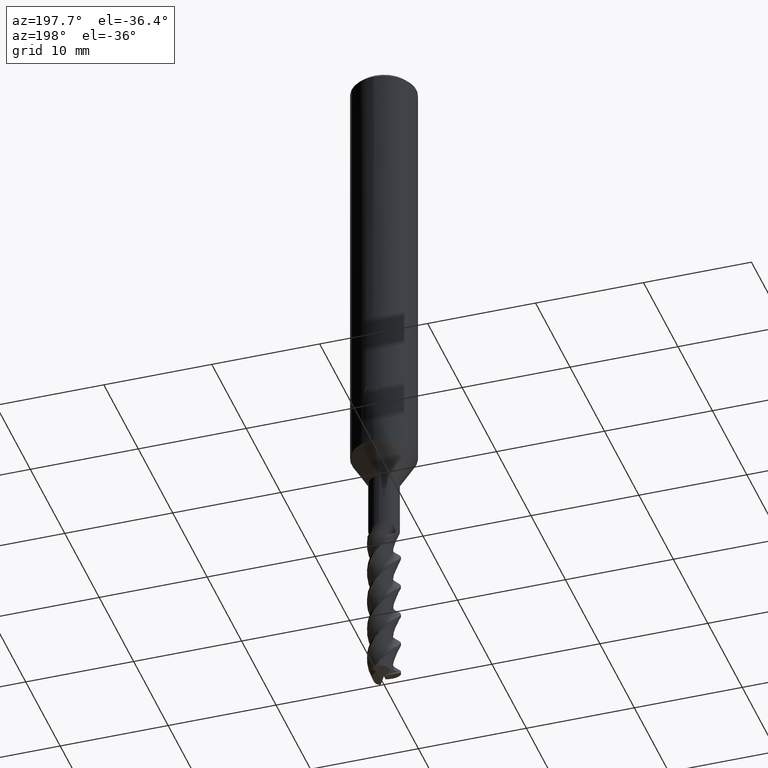
[diagram: clean part render]
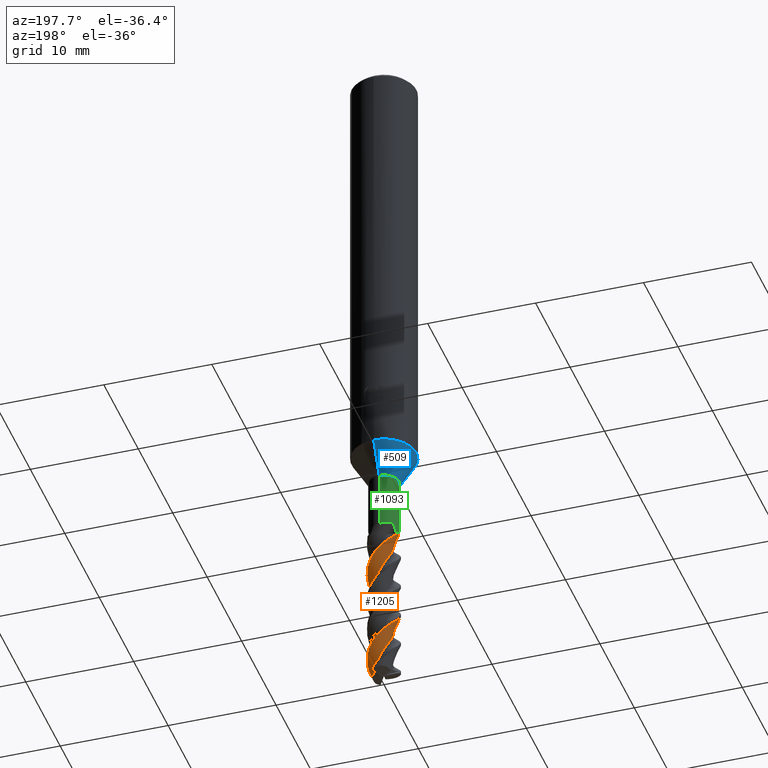
[diagram: same view with three faces highlighted in distinct colors, each labeled with its STEP entity id]
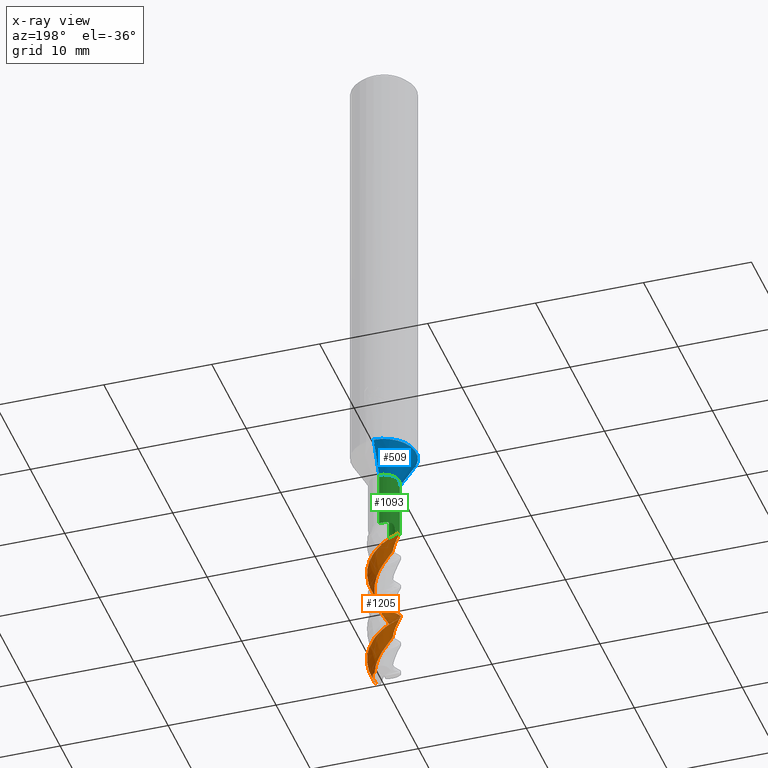
[diagram: x-ray of the same camera — body ghosted, the three highlighted faces saturated]
A machine part, auxiliary view with three faces highlighted in distinct colors.
The next image is the same camera in x-ray (body ghosted, the three faces saturated) — at least one of them is partly hidden behind the body in this view.
Their STEP definitions:

[orange] entity #1205 — the highlighted face is a freeform B-spline surface patch.
#521=EDGE_CURVE('',#919,#1129,#1454,.T.);
#527=EDGE_CURVE('',#1129,#1359,#1462,.T.);
#581=EDGE_CURVE('',#799,#891,#1519,.T.);
#623=VERTEX_POINT('',#1567);
#637=EDGE_CURVE('',#919,#623,#1582,.T.);
#647=EDGE_CURVE('',#891,#1319,#1593,.T.);
#787=VERTEX_POINT('',#1753);
#799=VERTEX_POINT('',#1766);
#815=EDGE_CURVE('',#787,#799,#1783,.T.);
#891=VERTEX_POINT('',#1861);
#919=VERTEX_POINT('',#1890);
#939=VERTEX_POINT('',#1911);
#1043=EDGE_CURVE('',#1319,#623,#2028,.T.);
#1083=EDGE_CURVE('',#939,#787,#2073,.T.);
#1129=VERTEX_POINT('',#2122);
#1205=ADVANCED_FACE('',(#2203),#2204,.T.);
#1303=EDGE_CURVE('',#1359,#939,#2310,.T.);
#1319=VERTEX_POINT('',#2327);
#1359=VERTEX_POINT('',#2368);
#1454=B_SPLINE_CURVE_WITH_KNOTS('',3,(#2852,#2853,#2854,#2855,#2856,#2857,#2858,#2859,#2860,#2861,#2862,#2863),.UNSPECIFIED.,.F.,.F.,(4,2,2,2,2,4),(0.0,0.446535262988125,0.863968938106093,1.30486467593082,1.60975469186954,1.94353848346004),.UNSPECIFIED.);
#1462=B_SPLINE_CURVE_WITH_KNOTS('',3,(#3310,#3311,#3312,#3313),.UNSPECIFIED.,.F.,.F.,(4,4),(0.0,0.308053623925815),.UNSPECIFIED.);
#1519=B_SPLINE_CURVE_WITH_KNOTS('',3,(#3979,#3980,#3981,#3982,#3983,#3984,#3985,#3986,#3987,#3988,#3989,#3990,#3991,#3992,#3993,#3994,#3995,#3996,#3997,#3998,#3999,#4000,#4001,#4002,#4003,#4004,#4005,#4006,#4007,#4008,#4009,#4010,#4011,#4012,#4013,#4014,#4015,#4016,#4017,#4018,#4019,#4020,#4021,#4022,#4023,#4024,#4025,#4026,#4027,#4028,#4029,#4030,#4031,#4032,#4033,#4034,#4035,#4036,#4037,#4038,#4039,#4040,#4041,#4042,#4043,#4044,#4045,#4046),.UNSPECIFIED.,.F.,.F.,(4,2,2,2,2,2,2,2,2,2,2,2,2,2,2,2,2,2,2,2,2,2,2,2,2,2,2,2,2,2,2,2,2,4),(0.0,0.899028708467187,1.39918778649449,1.88161939240538,2.39575334347704,2.64909420738283,3.0509378061471,3.59959442809737,3.8194015526048,4.210386133399,4.31222199589757,4.48706888389647,4.57029901132881,4.61224870908624,4.68431415994583,4.74973435287562,4.81903070426224,4.85287792311841,4.9129900611887,4.93980461090012,4.95353012349269,4.97594094817052,5.01570735612723,5.02602941008179,5.04418471668719,5.05257764349122,5.05677414686976,5.0636199624766,5.075763977025,5.07891535685566,5.08318040468338,5.08822668154064,5.0898923669212,5.09105401590856),.UNSPECIFIED.);
#1567=CARTESIAN_POINT('',(-0.529149993183319,-0.663249648706339,-49.0));
#1582=B_SPLINE_CURVE_WITH_KNOTS('',3,(#4272,#4273,#4274,#4275,#4276,#4277,#4278,#4279,#4280,#4281,#4282,#4283,#4284,#4285,#4286,#4287,#4288,#4289,#4290,#4291,#4292,#4293,#4294,#4295,#4296,#4297,#4298,#4299,#4300,#4301,#4302,#4303,#4304,#4305,#4306,#4307,#4308,#4309,#4310,#4311,#4312,#4313,#4314,#4315,#4316,#4317,#4318,#4319,#4320,#4321,#4322,#4323,#4324,#4325,#4326,#4327,#4328,#4329,#4330,#4331,#4332,#4333,#4334,#4335,#4336,#4337,#4338,#4339,#4340,#4341,#4342,#4343,#4344,#4345,#4346,#4347,#4348,#4349,#4350,#4351,#4352,#4353,#4354,#4355,#4356,#4357,#4358,#4359,#4360,#4361,#4362,#4363,#4364,#4365,#4366,#4367,#4368,#4369,#4370,#4371,#4372,#4373,#4374,#4375,#4376,#4377,#4378,#4379,#4380,#4381,#4382,#4383,#4384,#4385,#4386,#4387,#4388,#4389,#4390,#4391,#4392,#4393,#4394,#4395,#4396,#4397,#4398,#4399,#4400,#4401,#4402,#4403,#4404,#4405,#4406,#4407,#4408,#4409,#4410,#4411,#4412,#4413,#4414,#4415,#4416,#4417,#4418,#4419,#4420,#4421,#4422,#4423,#4424,#4425,#4426,#4427,#4428,#4429,#4430,#4431,#4432,#4433,#4434,#4435,#4436,#4437,#4438,#4439,#4440,#4441,#4442,#4443,#4444,#4445,#4446,#4447,#4448,#4449,#4450,#4451,#4452,#4453),.UNSPECIFIED.,.F.,.F.,(4,2,2,2,2,2,2,2,2,2,2,2,2,2,2,2,2,2,2,2,2,2,2,2,2,2,2,2,2,2,2,2,2,2,2,2,2,2,2,2,2,2,2,2,2,2,2,2,2,2,2,2,2,2,2,2,2,2,2,2,2,2,2,2,2,2,2,2,2,2,2,2,2,2,2,2,2,2,2,2,2,2,2,2,2,2,2,2,2,2,4),(-7.6586262662,-7.63238926716885,-7.60123656715097,-7.44846333189041,-7.38435009049802,-7.34213302362045,-7.29187596743721,-7.24731958778047,-7.20591427046739,-7.16548345540502,-7.02518939205688,-6.93865877444121,-6.89125373962075,-6.83709666330517,-6.79110015396954,-6.74807825298175,-6.70579651761883,-6.62338015612191,-6.52135203177744,-6.45253310185537,-6.40409307178787,-6.34358000681837,-6.31642055443331,-6.26857991534472,-6.22525950809771,-6.15631504750029,-6.03101639190775,-5.95346828593824,-5.90213181336646,-5.83922695200445,-5.80841461883604,-5.76435841870007,-5.71624836953352,-5.65442051588377,-5.50049417191218,-5.40148684805942,-5.34285964651213,-5.27477586389858,-5.216851794431,-5.16279449186168,-5.10985618960067,-5.00867273352982,-4.87955437401358,-4.79295294822453,-4.7321951598022,-4.65637291581988,-4.60447506247967,-4.55585235571352,-4.50465137412028,-4.38893588956483,-4.28748771271621,-4.21299926019435,-4.15645417872694,-4.08018570369514,-4.07116373272418,-4.00940724529848,-3.95698282666882,-3.88229437883275,-3.71620384445007,-3.61792648949627,-3.55478728417564,-3.47866318392465,-3.43934475905874,-3.38277813637859,-3.32129246440531,-3.24242758567265,-3.04603578302701,-2.91768167030679,-2.84266889489509,-2.75601370600619,-2.68121766117563,-2.61149141733603,-2.5435174830589,-2.41767482300063,-2.2482335150557,-2.13583664165429,-2.0576598367517,-1.96066520348925,-1.91634116097319,-1.85316937010616,-1.78371362563494,-1.6901743748964,-1.467115909289,-1.32985906312961,-1.24552382004968,-1.02582231434386,-0.887525606695598,-0.756006501115551,-0.520103425993334,-0.326116244600311,-0.0),.UNSPECIFIED.);
#1593=B_SPLINE_CURVE_WITH_KNOTS('',3,(#4473,#4474,#4475,#4476,#4477,#4478,#4479,#4480,#4481,#4482),.UNSPECIFIED.,.F.,.F.,(4,2,2,2,4),(0.0,0.484479027987144,0.968920436513355,1.33222905121786,1.69552495714208),.UNSPECIFIED.);
#1753=CARTESIAN_POINT('',(3.69500878207605E-012,-1.4999445566287,-55.6389376765889));
#1766=CARTESIAN_POINT('',(-6.46399365185547E-010,1.4999130495111,-50.9443771539939));
#1783=B_SPLINE_CURVE_WITH_KNOTS('',3,(#5778,#5779,#5780,#5781,#5782,#5783,#5784,#5785,#5786,#5787,#5788,#5789,#5790,#5791,#5792,#5793,#5794,#5795,#5796,#5797,#5798,#5799,#5800,#5801,#5802,#5803,#5804,#5805,#5806,#5807,#5808,#5809,#5810,#5811,#5812,#5813,#5814,#5815,#5816,#5817,#5818,#5819,#5820,#5821,#5822,#5823,#5824,#5825,#5826,#5827,#5828,#5829,#5830,#5831,#5832,#5833,#5834,#5835,#5836,#5837,#5838,#5839,#5840,#5841,#5842,#5843,#5844,#5845),.UNSPECIFIED.,.F.,.F.,(4,2,2,2,2,2,2,2,2,2,2,2,2,2,2,2,2,2,2,2,2,2,2,2,2,2,2,2,2,2,2,2,2,4),(0.0,0.899028708467187,1.39918778649449,1.88161939240538,2.39575334347704,2.64909420738283,3.0509378061471,3.59959442809737,3.8194015526048,4.210386133399,4.31222199589757,4.48706888389647,4.57029901132881,4.61224870908624,4.68431415994583,4.74973435287562,4.81903070426224,4.85287792311841,4.9129900611887,4.93980461090012,4.95353012349269,4.97594094817052,5.01570735612723,5.02602941008179,5.04418471668719,5.05257764349122,5.05677414686976,5.0636199624766,5.075763977025,5.07891535685566,5.08318040468338,5.08822668154064,5.0898923669212,5.09105401590856),.UNSPECIFIED.);
#1861=CARTESIAN_POINT('',(-1.43831539574662,0.425380808638837,-49.0));
#1890=CARTESIAN_POINT('',(0.75423122697452,0.386903122925956,-63.791261370249));
#1911=CARTESIAN_POINT('',(4.85836102787465E-015,1.49997626424822,-60.3633729841842));
#2028=B_SPLINE_CURVE_WITH_KNOTS('',3,(#8246,#8247,#8248,#8249,#8250,#8251,#8252,#8253,#8254,#8255),.UNSPECIFIED.,.F.,.F.,(4,2,2,2,4),(0.0,0.484479027987144,0.968920436513355,1.33222905121786,1.69552495714208),.UNSPECIFIED.);
#2073=B_SPLINE_CURVE_WITH_KNOTS('',3,(#8531,#8532,#8533,#8534,#8535,#8536,#8537,#8538,#8539,#8540,#8541,#8542,#8543,#8544,#8545,#8546,#8547,#8548,#8549,#8550,#8551,#8552,#8553,#8554,#8555,#8556,#8557,#8558,#8559,#8560,#8561,#8562,#8563,#8564,#8565,#8566,#8567,#8568,#8569,#8570,#8571,#8572,#8573,#8574,#8575,#8576,#8577,#8578,#8579,#8580,#8581,#8582,#8583,#8584,#8585,#8586,#8587,#8588,#8589,#8590,#8591,#8592,#8593,#8594,#8595,#8596,#8597,#8598),.UNSPECIFIED.,.F.,.F.,(4,2,2,2,2,2,2,2,2,2,2,2,2,2,2,2,2,2,2,2,2,2,2,2,2,2,2,2,2,2,2,2,2,4),(0.0,0.899028708467187,1.39918778649449,1.88161939240538,2.39575334347704,2.64909420738283,3.0509378061471,3.59959442809737,3.8194015526048,4.210386133399,4.31222199589757,4.48706888389647,4.57029901132881,4.61224870908624,4.68431415994583,4.74973435287562,4.81903070426224,4.85287792311841,4.9129900611887,4.93980461090012,4.95353012349269,4.97594094817052,5.01570735612723,5.02602941008179,5.04418471668719,5.05257764349122,5.05677414686976,5.0636199624766,5.075763977025,5.07891535685566,5.08318040468338,5.08822668154064,5.0898923669212,5.09105401590856),.UNSPECIFIED.);
#2122=CARTESIAN_POINT('',(1.07103123665785,-1.00858292266936,-63.9288278748572));
#2203=FACE_OUTER_BOUND('',#9413,.T.);
#2204=B_SPLINE_SURFACE_WITH_KNOTS('',3,3,((#9414,#9415,#9416,#9417,#9418,#9419,#9420,#9421,#9422,#9423,#9424,#9425,#9426,#9427,#9428,#9429,#9430,#9431,#9432,#9433,#9434,#9435,#9436,#9437,#9438,#9439,#9440,#9441,#9442,#9443,#9444,#9445,#9446,#9447,#9448,#9449,#9450,#9451,#9452,#9453,#9454,#9455,#9456,#9457,#9458,#9459,#9460,#9461,#9462,#9463,#9464,#9465,#9466,#9467,#9468,#9469,#9470,#9471,#9472,#9473,#9474,#9475,#9476,#9477,#9478,#9479,#9480,#9481,#9482,#9483,#9484,#9485,#9486),(#9487,#9488,#9489,#9490,#9491,#9492,#9493,#9494,#9495,#9496,#9497,#9498,#9499,#9500,#9501,#9502,#9503,#9504,#9505,#9506,#9507,#9508,#9509,#9510,#9511,#9512,#9513,#9514,#9515,#9516,#9517,#9518,#9519,#9520,#9521,#9522,#9523,#9524,#9525,#9526,#9527,#9528,#9529,#9530,#9531,#9532,#9533,#9534,#9535,#9536,#9537,#9538,#9539,#9540,#9541,#9542,#9543,#9544,#9545,#9546,#9547,#9548,#9549,#9550,#9551,#9552,#9553,#9554,#9555,#9556,#9557,#9558,#9559),(#9560,#9561,#9562,#9563,#9564,#9565,#9566,#9567,#9568,#9569,#9570,#9571,#9572,#9573,#9574,#9575,#9576,#9577,#9578,#9579,#9580,#9581,#9582,#9583,#9584,#9585,#9586,#9587,#9588,#9589,#9590,#9591,#9592,#9593,#9594,#9595,#9596,#9597,#9598,#9599,#9600,#9601,#9602,#9603,#9604,#9605,#9606,#9607,#9608,#9609,#9610,#9611,#9612,#9613,#9614,#9615,#9616,#9617,#9618,#9619,#9620,#9621,#9622,#9623,#9624,#9625,#9626,#9627,#9628,#9629,#9630,#9631,#9632),(#9633,#9634,#9635,#9636,#9637,#9638,#9639,#9640,#9641,#9642,#9643,#9644,#9645,#9646,#9647,#9648,#9649,#9650,#9651,#9652,#9653,#9654,#9655,#9656,#9657,#9658,#9659,#9660,#9661,#9662,#9663,#9664,#9665,#9666,#9667,#9668,#9669,#9670,#9671,#9672,#9673,#9674,#9675,#9676,#9677,#9678,#9679,#9680,#9681,#9682,#9683,#9684,#9685,#9686,#9687,#9688,#9689,#9690,#9691,#9692,#9693,#9694,#9695,#9696,#9697,#9698,#9699,#9700,#9701,#9702,#9703,#9704,#9705),(#9706,#9707,#9708,#9709,#9710,#9711,#9712,#9713,#9714,#9715,#9716,#9717,#9718,#9719,#9720,#9721,#9722,#9723,#9724,#9725,#9726,#9727,#9728,#9729,#9730,#9731,#9732,#9733,#9734,#9735,#9736,#9737,#9738,#9739,#9740,#9741,#9742,#9743,#9744,#9745,#9746,#9747,#9748,#9749,#9750,#9751,#9752,#9753,#9754,#9755,#9756,#9757,#9758,#9759,#9760,#9761,#9762,#9763,#9764,#9765,#9766,#9767,#9768,#9769,#9770,#9771,#9772,#9773,#9774,#9775,#9776,#9777,#9778),(#9779,#9780,#9781,#9782,#9783,#9784,#9785,#9786,#9787,#9788,#9789,#9790,#9791,#9792,#9793,#9794,#9795,#9796,#9797,#9798,#9799,#9800,#9801,#9802,#9803,#9804,#9805,#9806,#9807,#9808,#9809,#9810,#9811,#9812,#9813,#9814,#9815,#9816,#9817,#9818,#9819,#9820,#9821,#9822,#9823,#9824,#9825,#9826,#9827,#9828,#9829,#9830,#9831,#9832,#9833,#9834,#9835,#9836,#9837,#9838,#9839,#9840,#9841,#9842,#9843,#9844,#9845,#9846,#9847,#9848,#9849,#9850,#9851)),.UNSPECIFIED.,.F.,.F.,.F.,(4,1,1,4),(4,1,2,1,2,1,1,1,2,1,1,2,1,1,2,1,1,1,2,1,1,2,1,1,2,1,1,1,2,1,1,2,1,1,2,1,1,1,2,1,1,2,1,1,2,1,1,1,2,1,1,2,1,1,4),(-1.37901021707789,-0.861881385673684,-0.344752554269474,0.0),(0.0,0.329756401181869,0.659512802363739,0.989269203545608,1.31902560472748,1.64878200590935,1.97853840709122,2.30829480827309,2.63805120945496,2.96780761063683,3.46244221240963,3.95707681418243,4.45171141595524,4.94634601772804,5.27610241890991,5.60585882009178,5.93561522127365,6.26537162245552,6.59512802363739,6.92488442481926,7.41951902659206,7.91415362836487,8.40878823013767,8.90342283191047,9.23317923309234,9.56293563427421,9.89269203545608,10.222448436638,10.5522048378198,10.8819612390017,11.3765958407745,11.8712304425473,12.3658650443201,12.8604996460929,13.1902560472748,13.5200124484566,13.8497688496385,14.1795252508204,14.5092816520023,14.8390380531841,15.3336726549569,15.8283072567297,16.3229418585025,16.8175764602753,17.1473328614572,17.4770892626391,17.8068456638209,18.1366020650028,18.4663584661847,18.7961148673666,19.2907494691394,19.7853840709122,20.280018672685,20.7746532744578,21.1044096756396),.UNSPECIFIED.);
#2310=B_SPLINE_CURVE_WITH_KNOTS('',3,(#12082,#12083,#12084,#12085,#12086,#12087,#12088,#12089,#12090,#12091,#12092,#12093,#12094,#12095,#12096,#12097,#12098,#12099,#12100,#12101,#12102,#12103,#12104,#12105,#12106,#12107,#12108,#12109,#12110,#12111,#12112,#12113,#12114,#12115,#12116,#12117,#12118,#12119,#12120,#12121,#12122,#12123,#12124,#12125,#12126,#12127,#12128,#12129,#12130,#12131,#12132,#12133,#12134,#12135,#12136,#12137,#12138,#12139,#12140,#12141,#12142,#12143,#12144,#12145,#12146,#12147,#12148,#12149),.UNSPECIFIED.,.F.,.F.,(4,2,2,2,2,2,2,2,2,2,2,2,2,2,2,2,2,2,2,2,2,2,2,2,2,2,2,2,2,2,2,2,2,4),(0.0,0.899028708467187,1.39918778649449,1.88161939240538,2.39575334347704,2.64909420738283,3.0509378061471,3.59959442809737,3.8194015526048,4.210386133399,4.31222199589757,4.48706888389647,4.57029901132881,4.61224870908624,4.68431415994583,4.74973435287562,4.81903070426224,4.85287792311841,4.9129900611887,4.93980461090012,4.95353012349269,4.97594094817052,5.01570735612723,5.02602941008179,5.04418471668719,5.05257764349122,5.05677414686976,5.0636199624766,5.075763977025,5.07891535685566,5.08318040468338,5.08822668154064,5.0898923669212,5.09105401590856),.UNSPECIFIED.);
#2327=CARTESIAN_POINT('',(-0.908414556679417,-0.486686346622736,-49.0));
#2368=CARTESIAN_POINT('',(1.06083041306651,-1.06048990316416,-63.9));
#2852=CARTESIAN_POINT('',(0.749922147655097,0.390272357284169,-63.7919265312249));
#2853=CARTESIAN_POINT('',(0.866510528830005,0.299521447753767,-63.7738632558924));
#2854=CARTESIAN_POINT('',(0.966241309221917,0.188857487002082,-63.7637785905277));
#2855=CARTESIAN_POINT('',(1.11259952778554,-0.0586398437885399,-63.7628034188126));
#2856=CARTESIAN_POINT('',(1.15981451156111,-0.189258143208472,-63.7707378843535));
#2857=CARTESIAN_POINT('',(1.20403373407744,-0.469419218681572,-63.8038100200921));
#2858=CARTESIAN_POINT('',(1.19729165683665,-0.614545544112168,-63.8292843652549));
#2859=CARTESIAN_POINT('',(1.14121275547306,-0.850372836829524,-63.8833768011877));
#2860=CARTESIAN_POINT('',(1.10597491053997,-0.942755382342899,-63.9083007872982));
#2861=CARTESIAN_POINT('',(1.01031672847163,-1.1242921360775,-63.9647103532985));
#2862=CARTESIAN_POINT('',(0.948167957698714,-1.21168904029697,-63.9963968035897));
#2863=CARTESIAN_POINT('',(0.876464416321636,-1.2901777979222,-64.0293246423238));
#3310=CARTESIAN_POINT('',(1.08254707393419,-0.909750654990955,-63.9859439821775));
#3311=CARTESIAN_POINT('',(1.07667203778887,-0.997953213285627,-63.9336954636883));
#3312=CARTESIAN_POINT('',(1.05936280599221,-1.08651167752182,-63.8846785150663));
#3313=CARTESIAN_POINT('',(1.02776143608129,-1.17333788747917,-63.8401873934059));
#3979=CARTESIAN_POINT('',(1.0608304130665,-1.06048990316418,-63.9));
#3980=CARTESIAN_POINT('',(1.2081403952739,-0.913130576954263,-63.6846146601148));
#3981=CARTESIAN_POINT('',(1.33491476636902,-0.725038804498615,-63.4464005233152));
#3982=CARTESIAN_POINT('',(1.45914240083912,-0.372480549122195,-63.083958284466));
#3983=CARTESIAN_POINT('',(1.48603750207587,-0.244794305392986,-62.9674585063211));
#3984=CARTESIAN_POINT('',(1.50550988028054,0.0198908644453821,-62.7060927683197));
#3985=CARTESIAN_POINT('',(1.49796593872847,0.148509398437874,-62.5740611255642));
#3986=CARTESIAN_POINT('',(1.45046261109976,0.405314013086238,-62.3021136472937));
#3987=CARTESIAN_POINT('',(1.40791956109717,0.535474361406587,-62.1600701569189));
#3988=CARTESIAN_POINT('',(1.31746537614086,0.720319650626202,-61.9544434802511));
#3989=CARTESIAN_POINT('',(1.28313801989074,0.779982940259824,-61.8873584854422));
#3990=CARTESIAN_POINT('',(1.18246821210409,0.929486524638007,-61.7164604137732));
#3991=CARTESIAN_POINT('',(1.08559096213335,1.05220004520671,-61.5739902345826));
#3992=CARTESIAN_POINT('',(0.736984897580433,1.33165693698484,-61.1199551399877));
#3993=CARTESIAN_POINT('',(0.485098857444073,1.44847502125329,-60.8280468782427));
#3994=CARTESIAN_POINT('',(0.0840262093027971,1.50208718341826,-60.4398641145209));
#3995=CARTESIAN_POINT('',(-0.0451990452198577,1.50643304733062,-60.3234676440082));
#3996=CARTESIAN_POINT('',(-0.448927679518659,1.45474012749974,-59.9189883769899));
#3997=CARTESIAN_POINT('',(-0.693353739769808,1.35525961640011,-59.6405491640721));
#3998=CARTESIAN_POINT('',(-0.955249907435932,1.15844209934401,-59.3143154587875));
#3999=CARTESIAN_POINT('',(-1.0072276013184,1.11365512339719,-59.2477362420847));
#4000=CARTESIAN_POINT('',(-1.14124102894789,0.980666435340866,-59.069576595376));
#4001=CARTESIAN_POINT('',(-1.29268155022868,0.811441582496529,-58.8620692342028));
#4002=CARTESIAN_POINT('',(-1.44504644495118,0.42398033766859,-58.4292961496678));
#4003=CARTESIAN_POINT('',(-1.47755533857071,0.292033951583414,-58.2873859448148));
#4004=CARTESIAN_POINT('',(-1.49893876004296,0.0882157195079692,-58.0798746791473));
#4005=CARTESIAN_POINT('',(-1.50149392196675,0.018705910570777,-58.0110034391625));
#4006=CARTESIAN_POINT('',(-1.49490950657477,-0.172449896275956,-57.8265883630877));
#4007=CARTESIAN_POINT('',(-1.47643550003911,-0.301352995494835,-57.7097505405675));
#4008=CARTESIAN_POINT('',(-1.39585927256376,-0.56443571329799,-57.4371714594192));
#4009=CARTESIAN_POINT('',(-1.3418628395824,-0.682252932615551,-57.303701370256));
#4010=CARTESIAN_POINT('',(-1.20375441709726,-0.904992290832482,-57.0303020060343));
#4011=CARTESIAN_POINT('',(-1.11661308893249,-1.01103824380268,-56.8881871255435));
#4012=CARTESIAN_POINT('',(-0.964858662126657,-1.15042365535064,-56.6832913739172));
#4013=CARTESIAN_POINT('',(-0.911407965300077,-1.19331775584012,-56.616897595299));
#4014=CARTESIAN_POINT('',(-0.753026390290282,-1.30307280184874,-56.4353741181255));
#4015=CARTESIAN_POINT('',(-0.550207654265617,-1.42606333636889,-56.2176479876378));
#4016=CARTESIAN_POINT('',(-0.131270531172761,-1.49994147358189,-55.7746090106485));
#4017=CARTESIAN_POINT('',(0.00161725482031422,-1.5058848150583,-55.6360239783649));
#4018=CARTESIAN_POINT('',(0.202837826757096,-1.48773831906491,-55.4323603499439));
#4019=CARTESIAN_POINT('',(0.27127695660312,-1.47687370636852,-55.3641276739428));
#4020=CARTESIAN_POINT('',(0.451133795995651,-1.43506684805586,-55.1871661346048));
#4021=CARTESIAN_POINT('',(0.573460804833022,-1.39376637947041,-55.0708132762079));
#4022=CARTESIAN_POINT('',(0.933774230642081,-1.20247732795085,-54.6650839894197));
#4023=CARTESIAN_POINT('',(1.12750204661801,-1.02296184732914,-54.3863965262084));
#4024=CARTESIAN_POINT('',(1.30318279432518,-0.745715416209961,-54.0598864213263));
#4025=CARTESIAN_POINT('',(1.33593560087592,-0.685490905924761,-53.9934414656644));
#4026=CARTESIAN_POINT('',(1.41541262742683,-0.511193836645173,-53.8128965387453));
#4027=CARTESIAN_POINT('',(1.49954128082178,-0.292621604051075,-53.5981824675924));
#4028=CARTESIAN_POINT('',(1.50010603088185,0.13234449906106,-53.1558035490614));
#4029=CARTESIAN_POINT('',(1.48222989691422,0.267372130443133,-53.0138213316468));
#4030=CARTESIAN_POINT('',(1.42761343045759,0.465161009190873,-52.8069947301423));
#4031=CARTESIAN_POINT('',(1.40470767992337,0.530556210106612,-52.7387740000314));
#4032=CARTESIAN_POINT('',(1.33151210232042,0.699954062407875,-52.5619424275172));
#4033=CARTESIAN_POINT('',(1.26906885421545,0.812937548902693,-52.44559907907));
#4034=CARTESIAN_POINT('',(1.01651228287236,1.13337642782751,-52.0397790820553));
#4035=CARTESIAN_POINT('',(0.805282723539511,1.2919749680308,-51.7610498452895));
#4036=CARTESIAN_POINT('',(0.501097710278107,1.41535301277334,-51.4345370972739));
#4037=CARTESIAN_POINT('',(0.436000168598792,1.43682701098809,-51.368106275942));
#4038=CARTESIAN_POINT('',(0.277620899160045,1.47699033144963,-51.2141313154893));
#4039=CARTESIAN_POINT('',(0.109355226735132,1.51149028536625,-51.0577492992437));
#4040=CARTESIAN_POINT('',(-0.361845573610317,1.47795210152467,-50.5743309433574));
#4041=CARTESIAN_POINT('',(-0.632311322086751,1.39309893405381,-50.2776758993929));
#4042=CARTESIAN_POINT('',(-0.957518615555236,1.15877998612165,-49.8994553345822));
#4043=CARTESIAN_POINT('',(-1.10037293038873,1.04477763314185,-49.7330655202204));
#4044=CARTESIAN_POINT('',(-1.32277696459857,0.724970941659597,-49.3329921092767));
#4045=CARTESIAN_POINT('',(-1.39271936836826,0.579555880357106,-49.1637635352838));
#4046=CARTESIAN_POINT('',(-1.43831539574662,0.425380808638851,-49.0));
#4272=CARTESIAN_POINT('',(0.83331985907546,0.152519684778839,-64.2401179662907));
#4273=CARTESIAN_POINT('',(0.830471303877205,0.167749390313126,-64.2141820202023));
#4274=CARTESIAN_POINT('',(0.827263844441984,0.1827040494603,-64.1881247000065));
#4275=CARTESIAN_POINT('',(0.819523564476365,0.214828658795327,-64.1308983899165));
#4276=CARTESIAN_POINT('',(0.814853374029829,0.231895877931383,-64.099672973562));
#4277=CARTESIAN_POINT('',(0.784738914351372,0.330516188935216,-63.9147165606701));
#4278=CARTESIAN_POINT('',(0.748535892576655,0.406531612494693,-63.7526895293686));
#4279=CARTESIAN_POINT('',(0.683881934831018,0.503274992838158,-63.5335686283499));
#4280=CARTESIAN_POINT('',(0.662695761647247,0.531135213078758,-63.4687187388217));
#4281=CARTESIAN_POINT('',(0.623843736537822,0.575720224389729,-63.3622526756453));
#4282=CARTESIAN_POINT('',(0.60742080388283,0.593028257275823,-63.3201845965172));
#4283=CARTESIAN_POINT('',(0.569084575862725,0.629918293835968,-63.2285836194204));
#4284=CARTESIAN_POINT('',(0.546764305195514,0.649266536087071,-63.1792604983441));
#4285=CARTESIAN_POINT('',(0.501587629033613,0.684148296455182,-63.0868714998989));
#4286=CARTESIAN_POINT('',(0.482041832336443,0.697746202817782,-63.0501396939053));
#4287=CARTESIAN_POINT('',(0.439805908254465,0.724660946334644,-62.9693754330879));
#4288=CARTESIAN_POINT('',(0.419348470987944,0.736536967056641,-62.9301958851475));
#4289=CARTESIAN_POINT('',(0.378799481187192,0.758036701054409,-62.8522309484857));
#4290=CARTESIAN_POINT('',(0.35871136328319,0.767706007050875,-62.8134603987306));
#4291=CARTESIAN_POINT('',(0.268854907202518,0.806967574741091,-62.6394203919919));
#4292=CARTESIAN_POINT('',(0.197255147914992,0.827508900264332,-62.4986109899994));
#4293=CARTESIAN_POINT('',(0.0820777476199344,0.845411942105232,-62.2787054768076));
#4294=CARTESIAN_POINT('',(0.0368974950024589,0.84886042874566,-62.1941680055748));
#4295=CARTESIAN_POINT('',(-0.0345024009089938,0.848159807924234,-62.0652711114212));
#4296=CARTESIAN_POINT('',(-0.0601451957982137,0.846741066174172,-62.019850890193));
#4297=CARTESIAN_POINT('',(-0.115851741864735,0.84092137653045,-61.923142915434));
#4298=CARTESIAN_POINT('',(-0.145975202436298,0.836131302851113,-61.8720328251314));
#4299=CARTESIAN_POINT('',(-0.202381042435251,0.823748834712902,-61.7781803615438));
#4300=CARTESIAN_POINT('',(-0.22491580702608,0.817618785373196,-61.7419664147192));
#4301=CARTESIAN_POINT('',(-0.271571676368,0.802944407482738,-61.6629756346433));
#4302=CARTESIAN_POINT('',(-0.293386381046135,0.795098638179669,-61.6245310217163));
#4303=CARTESIAN_POINT('',(-0.335250464727129,0.778235395030918,-61.5477897087525));
#4304=CARTESIAN_POINT('',(-0.355322309399072,0.769240598252248,-61.5095047990113));
#4305=CARTESIAN_POINT('',(-0.41259093881926,0.741047949795149,-61.3961111793855));
#4306=CARTESIAN_POINT('',(-0.448209533528935,0.720147353347019,-61.3199992674798));
#4307=CARTESIAN_POINT('',(-0.522785620867278,0.669201758478834,-61.150465560635));
#4308=CARTESIAN_POINT('',(-0.561573896167823,0.637434414483705,-61.0549237227667));
#4309=CARTESIAN_POINT('',(-0.621424483346404,0.578577519217031,-60.8977595602145));
#4310=CARTESIAN_POINT('',(-0.644454015113684,0.55303543562672,-60.8344282372446));
#4311=CARTESIAN_POINT('',(-0.681432081128894,0.506204787581093,-60.7275358939304));
#4312=CARTESIAN_POINT('',(-0.696072369229725,0.485868648476278,-60.6836016515629));
#4313=CARTESIAN_POINT('',(-0.72734747054257,0.437742704776728,-60.5853809812692));
#4314=CARTESIAN_POINT('',(-0.743526801483789,0.40942949311328,-60.5313952224324));
#4315=CARTESIAN_POINT('',(-0.764892853991216,0.365931301743302,-60.4537546859068));
#4316=CARTESIAN_POINT('',(-0.770364973250736,0.353953015822979,-60.4332032326737));
#4317=CARTESIAN_POINT('',(-0.785920160195895,0.317819947061145,-60.3704155117182));
#4318=CARTESIAN_POINT('',(-0.794658090022014,0.294847051345407,-60.3300645150896));
#4319=CARTESIAN_POINT('',(-0.809265521015216,0.251300555910625,-60.252596152619));
#4320=CARTESIAN_POINT('',(-0.815325004634237,0.230712606883762,-60.2155482014052));
#4321=CARTESIAN_POINT('',(-0.828919338770968,0.177696515549311,-60.1190965264418));
#4322=CARTESIAN_POINT('',(-0.835235783188423,0.145358973148383,-60.0592159701362));
#4323=CARTESIAN_POINT('',(-0.847779418322814,0.0552403768669728,-59.8904922548724));
#4324=CARTESIAN_POINT('',(-0.849918549622558,-0.00322623842453764,-59.7788692793238));
#4325=CARTESIAN_POINT('',(-0.843548237181769,-0.0971257203070354,-59.6021533973467));
#4326=CARTESIAN_POINT('',(-0.838749117355944,-0.133419752253164,-59.5344808508738));
#4327=CARTESIAN_POINT('',(-0.826377212054434,-0.194135319117949,-59.4231829913698));
#4328=CARTESIAN_POINT('',(-0.820281149541476,-0.218468907964285,-59.379066582709));
#4329=CARTESIAN_POINT('',(-0.803853786662172,-0.272882272650362,-59.2814876558337));
#4330=CARTESIAN_POINT('',(-0.792900812841551,-0.302952576858501,-59.2282920555268));
#4331=CARTESIAN_POINT('',(-0.773383605417383,-0.347771336499905,-59.1496185956224));
#4332=CARTESIAN_POINT('',(-0.767482339885067,-0.360250448652237,-59.1280146590733));
#4333=CARTESIAN_POINT('',(-0.751907080207674,-0.39142114222234,-59.0725786927239));
#4334=CARTESIAN_POINT('',(-0.74226895559558,-0.409128128484311,-59.0397565542272));
#4335=CARTESIAN_POINT('',(-0.721241064403926,-0.444907296175754,-58.9706528953161));
#4336=CARTESIAN_POINT('',(-0.709778360728374,-0.462852073419682,-58.9343517749672));
#4337=CARTESIAN_POINT('',(-0.682617831105394,-0.502272116729149,-58.8509727827074));
#4338=CARTESIAN_POINT('',(-0.666623531766088,-0.52332576748116,-58.803704554686));
#4339=CARTESIAN_POINT('',(-0.608677563029665,-0.593055051892452,-58.6383203009369));
#4340=CARTESIAN_POINT('',(-0.562540895556469,-0.637365828861991,-58.5165621156608));
#4341=CARTESIAN_POINT('',(-0.480557353101349,-0.700216305538151,-58.3217432920841));
#4342=CARTESIAN_POINT('',(-0.446176215176115,-0.722879735934615,-58.2451244871312));
#4343=CARTESIAN_POINT('',(-0.387728204566762,-0.755158819890328,-58.1246890077864));
#4344=CARTESIAN_POINT('',(-0.365114608143093,-0.766359325987226,-58.0801008315816));
#4345=CARTESIAN_POINT('',(-0.314236161197306,-0.788586681981601,-57.9843203991677));
#4346=CARTESIAN_POINT('',(-0.285698753981655,-0.799273849075106,-57.9333226990196));
#4347=CARTESIAN_POINT('',(-0.23052532810556,-0.816337923735764,-57.8396047561838));
#4348=CARTESIAN_POINT('',(-0.207826816858697,-0.822146310269166,-57.8033312618511));
#4349=CARTESIAN_POINT('',(-0.159793407798106,-0.832439604872292,-57.7240417211643));
#4350=CARTESIAN_POINT('',(-0.136874305157995,-0.836384382459519,-57.6854950581101));
#4351=CARTESIAN_POINT('',(-0.0920781400758959,-0.84236208856719,-57.6086834005288));
#4352=CARTESIAN_POINT('',(-0.0701907370740079,-0.844432339946457,-57.570432185028));
#4353=CARTESIAN_POINT('',(-0.00731340342469163,-0.848093561648001,-57.4585926956353));
#4354=CARTESIAN_POINT('',(0.0331685492485949,-0.847544843315534,-57.3840607020683));
#4355=CARTESIAN_POINT('',(0.122955551835511,-0.840267447810819,-57.2151386739838));
#4356=CARTESIAN_POINT('',(0.17290051869834,-0.831761290448439,-57.1186106339793));
#4357=CARTESIAN_POINT('',(0.254647942324333,-0.809982749052162,-56.9602296463892));
#4358=CARTESIAN_POINT('',(0.28743113976101,-0.799094313557397,-56.8966172958669));
#4359=CARTESIAN_POINT('',(0.342874374873452,-0.776543701688658,-56.7894027158562));
#4360=CARTESIAN_POINT('',(0.365669611985208,-0.766068522482791,-56.7454200872278));
#4361=CARTESIAN_POINT('',(0.416648510915028,-0.739625608663073,-56.6471486819264));
#4362=CARTESIAN_POINT('',(0.44469461157736,-0.722980328142416,-56.5931593623582));
#4363=CARTESIAN_POINT('',(0.491259836127352,-0.691245708322122,-56.5028853089968));
#4364=CARTESIAN_POINT('',(0.508485442945137,-0.678481729976815,-56.4695471890428));
#4365=CARTESIAN_POINT('',(0.545198627277345,-0.648934096238101,-56.3927703942993));
#4366=CARTESIAN_POINT('',(0.56206846983078,-0.634235296907006,-56.3553808578775));
#4367=CARTESIAN_POINT('',(0.594996360225298,-0.603363609653634,-56.278142478557));
#4368=CARTESIAN_POINT('',(0.610967626045689,-0.58715013147623,-56.2382590530607));
#4369=CARTESIAN_POINT('',(0.660208418221445,-0.533266725559842,-56.1077224039729));
#4370=CARTESIAN_POINT('',(0.6902999264411,-0.493883147848598,-56.0153074175462));
#4371=CARTESIAN_POINT('',(0.739219510903719,-0.417469370887362,-55.8438753661864));
#4372=CARTESIAN_POINT('',(0.759519757102296,-0.379895143016638,-55.7627987860087));
#4373=CARTESIAN_POINT('',(0.789664802170666,-0.311849755644652,-55.6241139354549));
#4374=CARTESIAN_POINT('',(0.800977068623995,-0.281877833940056,-55.5654486924344));
#4375=CARTESIAN_POINT('',(0.817934428547481,-0.227066307348455,-55.4631203772634));
#4376=CARTESIAN_POINT('',(0.824295328574719,-0.202707147680702,-55.4191993930426));
#4377=CARTESIAN_POINT('',(0.836704626918835,-0.143761220137368,-55.3166644055739));
#4378=CARTESIAN_POINT('',(0.841849884053206,-0.10868631507413,-55.2584845450898));
#4379=CARTESIAN_POINT('',(0.845003363470566,-0.068055832841405,-55.1939243636749));
#4380=CARTESIAN_POINT('',(0.845259562186372,-0.0643594809077136,-55.1880978126415));
#4381=CARTESIAN_POINT('',(0.847188809502844,-0.0339145200329502,-55.139898466504));
#4382=CARTESIAN_POINT('',(0.847645995693501,-0.00788035051375063,-55.0975096903624));
#4383=CARTESIAN_POINT('',(0.846491202657586,0.0392641795327627,-55.018485420149));
#4384=CARTESIAN_POINT('',(0.845181011676853,0.0605109461836661,-54.9819727573787));
#4385=CARTESIAN_POINT('',(0.840288215424189,0.111063533641151,-54.8930098767108));
#4386=CARTESIAN_POINT('',(0.83597126150085,0.140023640082517,-54.8402558331239));
#4387=CARTESIAN_POINT('',(0.817891304535121,0.230888874645767,-54.6698967324095));
#4388=CARTESIAN_POINT('',(0.798701180022809,0.291394000608977,-54.5487845092592));
#4389=CARTESIAN_POINT('',(0.758063845167466,0.38262429772924,-54.3610071634617));
#4390=CARTESIAN_POINT('',(0.740457643578487,0.416056274476717,-54.2910332709664));
#4391=CARTESIAN_POINT('',(0.707073529704834,0.469721102912202,-54.177367205435));
#4392=CARTESIAN_POINT('',(0.692865373246241,0.490443701098575,-54.1331176754549));
#4393=CARTESIAN_POINT('',(0.658772294236122,0.535400910924819,-54.0361110389831));
#4394=CARTESIAN_POINT('',(0.638362810031734,0.559429494261226,-53.983597948204));
#4395=CARTESIAN_POINT('',(0.604443426642327,0.594790600557874,-53.9045373533459));
#4396=CARTESIAN_POINT('',(0.594208897634581,0.604782747897914,-53.8820925949251));
#4397=CARTESIAN_POINT('',(0.56867203508506,0.628664233607055,-53.8265760197698));
#4398=CARTESIAN_POINT('',(0.553382024816557,0.641983578829025,-53.7936213561177));
#4399=CARTESIAN_POINT('',(0.521099128973151,0.668280841270714,-53.7244003976542));
#4400=CARTESIAN_POINT('',(0.504084631113467,0.681119640085596,-53.6881177873472));
#4401=CARTESIAN_POINT('',(0.464894749461855,0.708600149254093,-53.6048659228162));
#4402=CARTESIAN_POINT('',(0.442591620115862,0.722745918963908,-53.5577099599687));
#4403=CARTESIAN_POINT('',(0.364064038904449,0.767875587680586,-53.3926695719087));
#4404=CARTESIAN_POINT('',(0.305473224214138,0.79330432703497,-53.2711529834628));
#4405=CARTESIAN_POINT('',(0.20635043560645,0.823826786953652,-53.0754728476545));
#4406=CARTESIAN_POINT('',(0.165666785217456,0.833203533221697,-52.9977343529968));
#4407=CARTESIAN_POINT('',(0.0990291014710412,0.843085454163063,-52.8761704319186));
#4408=CARTESIAN_POINT('',(0.0739105847590255,0.845668903847215,-52.8315339734374));
#4409=CARTESIAN_POINT('',(0.01859418170668,0.848684660173385,-52.7359206792353));
#4410=CARTESIAN_POINT('',(-0.0117340224531356,0.848719634388017,-52.6851318282272));
#4411=CARTESIAN_POINT('',(-0.0694954181737315,0.845426991642618,-52.5911717978788));
#4412=CARTESIAN_POINT('',(-0.0929289604439849,0.842909667594638,-52.5546812450384));
#4413=CARTESIAN_POINT('',(-0.141683391937753,0.835717606880595,-52.4751860150063));
#4414=CARTESIAN_POINT('',(-0.16459215958352,0.831377732466228,-52.4365605197073));
#4415=CARTESIAN_POINT('',(-0.208657734379561,0.821287447431853,-52.3597610912792));
#4416=CARTESIAN_POINT('',(-0.229842202133345,0.815575269973102,-52.3216040105279));
#4417=CARTESIAN_POINT('',(-0.288665278097381,0.797414997670067,-52.2123372484018));
#4418=CARTESIAN_POINT('',(-0.325181163007816,0.783304775015252,-52.1403778218208));
#4419=CARTESIAN_POINT('',(-0.406704100127255,0.745538648293709,-51.9721120808904));
#4420=CARTESIAN_POINT('',(-0.451467062930605,0.719705283181662,-51.8736147813052));
#4421=CARTESIAN_POINT('',(-0.521502763484979,0.67004740668649,-51.7128080318744));
#4422=CARTESIAN_POINT('',(-0.548636773621182,0.648215365608488,-51.6486375999645));
#4423=CARTESIAN_POINT('',(-0.592890441231847,0.607506296154076,-51.5408802108836));
#4424=CARTESIAN_POINT('',(-0.610571829062555,0.589727785267837,-51.4968977764703));
#4425=CARTESIAN_POINT('',(-0.648935581092225,0.547283221944762,-51.3989430179595));
#4426=CARTESIAN_POINT('',(-0.669263929485067,0.522050458095335,-51.3452606422451));
#4427=CARTESIAN_POINT('',(-0.69723831083747,0.482532044007545,-51.2676204648748));
#4428=CARTESIAN_POINT('',(-0.704581412532573,0.471504450606612,-51.2469353012861));
#4429=CARTESIAN_POINT('',(-0.723120240850145,0.44229458029282,-51.191738925733));
#4430=CARTESIAN_POINT('',(-0.733240053574009,0.425052566817804,-51.1591038437312));
#4431=CARTESIAN_POINT('',(-0.752976800988899,0.388764495442712,-51.0901573859511));
#4432=CARTESIAN_POINT('',(-0.762438163299102,0.369719777908895,-51.0538217432908));
#4433=CARTESIAN_POINT('',(-0.782739406675508,0.325012053521401,-50.9681216571114));
#4434=CARTESIAN_POINT('',(-0.79293933304976,0.299301761584212,-50.9185209978146));
#4435=CARTESIAN_POINT('',(-0.822903631308176,0.212379423607741,-50.7502484004881));
#4436=CARTESIAN_POINT('',(-0.83688760481172,0.149745171365733,-50.6279261833888));
#4437=CARTESIAN_POINT('',(-0.847840002676435,0.0482185589137784,-50.4355697668612));
#4438=CARTESIAN_POINT('',(-0.849376091877604,0.0086460385341023,-50.3620307090058));
#4439=CARTESIAN_POINT('',(-0.847004328073474,-0.0564243351542037,-50.2447189539682));
#4440=CARTESIAN_POINT('',(-0.844965295934072,-0.0815262856852774,-50.200278990853));
#4441=CARTESIAN_POINT('',(-0.833078700677269,-0.173189266094613,-50.0410432509217));
#4442=CARTESIAN_POINT('',(-0.818570289390043,-0.22395776994741,-49.9592793178723));
#4443=CARTESIAN_POINT('',(-0.798813581247348,-0.283689549030341,-49.8581642762711));
#4444=CARTESIAN_POINT('',(-0.790396151819686,-0.305976961132812,-49.8188199349362));
#4445=CARTESIAN_POINT('',(-0.772641668351497,-0.347995288935827,-49.7415192874056));
#4446=CARTESIAN_POINT('',(-0.763370858536072,-0.367794531146517,-49.7035963910002));
#4447=CARTESIAN_POINT('',(-0.735945320960179,-0.421274701498693,-49.5971876486554));
#4448=CARTESIAN_POINT('',(-0.716489534824566,-0.453679445970247,-49.5279479097421));
#4449=CARTESIAN_POINT('',(-0.678239651378073,-0.50917227916975,-49.4020860710053));
#4450=CARTESIAN_POINT('',(-0.659757047780898,-0.533156094979511,-49.3448297584756));
#4451=CARTESIAN_POINT('',(-0.60716043483624,-0.594373071504685,-49.1921563030827));
#4452=CARTESIAN_POINT('',(-0.570187101963381,-0.63042157768184,-49.0951544061941));
#4453=CARTESIAN_POINT('',(-0.529148639334792,-0.663250731734196,-48.9999968607726));
#4473=CARTESIAN_POINT('',(-1.44143515447547,0.595702670491,-49.0));
#4474=CARTESIAN_POINT('',(-1.4495736247507,0.434414861392696,-49.0));
#4475=CARTESIAN_POINT('',(-1.42613200532296,0.273079658402559,-49.0));
#4476=CARTESIAN_POINT('',(-1.31872716456139,-0.0315116219465539,-49.0));
#4477=CARTESIAN_POINT('',(-1.23579569946048,-0.171856325095788,-49.0));
#4478=CARTESIAN_POINT('',(-1.04768232085002,-0.382727032555282,-49.0));
#4479=CARTESIAN_POINT('',(-0.954260668940871,-0.460802291421714,-49.0));
#4480=CARTESIAN_POINT('',(-0.747769283795733,-0.587383135466395,-49.0));
#4481=CARTESIAN_POINT('',(-0.635809728836028,-0.635209637910968,-49.0));
#4482=CARTESIAN_POINT('',(-0.518703968130516,-0.666049364265059,-49.0));
#5778=CARTESIAN_POINT('',(1.0608304130665,-1.06048990316418,-63.9));
#5779=CARTESIAN_POINT('',(1.2081403952739,-0.913130576954263,-63.6846146601148));
#5780=CARTESIAN_POINT('',(1.33491476636902,-0.725038804498615,-63.4464005233152));
#5781=CARTESIAN_POINT('',(1.45914240083912,-0.372480549122195,-63.083958284466));
#5782=CARTESIAN_POINT('',(1.48603750207587,-0.244794305392986,-62.9674585063211));
#5783=CARTESIAN_POINT('',(1.50550988028054,0.0198908644453821,-62.7060927683197));
#5784=CARTESIAN_POINT('',(1.49796593872847,0.148509398437874,-62.5740611255642));
#5785=CARTESIAN_POINT('',(1.45046261109976,0.405314013086238,-62.3021136472937));
#5786=CARTESIAN_POINT('',(1.40791956109717,0.535474361406587,-62.1600701569189));
#5787=CARTESIAN_POINT('',(1.31746537614086,0.720319650626202,-61.9544434802511));
#5788=CARTESIAN_POINT('',(1.28313801989074,0.779982940259824,-61.8873584854422));
#5789=CARTESIAN_POINT('',(1.18246821210409,0.929486524638007,-61.7164604137732));
#5790=CARTESIAN_POINT('',(1.08559096213335,1.05220004520671,-61.5739902345826));
#5791=CARTESIAN_POINT('',(0.736984897580433,1.33165693698484,-61.1199551399877));
#5792=CARTESIAN_POINT('',(0.485098857444073,1.44847502125329,-60.8280468782427));
#5793=CARTESIAN_POINT('',(0.0840262093027971,1.50208718341826,-60.4398641145209));
#5794=CARTESIAN_POINT('',(-0.0451990452198577,1.50643304733062,-60.3234676440082));
#5795=CARTESIAN_POINT('',(-0.448927679518659,1.45474012749974,-59.9189883769899));
#5796=CARTESIAN_POINT('',(-0.693353739769808,1.35525961640011,-59.6405491640721));
#5797=CARTESIAN_POINT('',(-0.955249907435932,1.15844209934401,-59.3143154587875));
#5798=CARTESIAN_POINT('',(-1.0072276013184,1.11365512339719,-59.2477362420847));
#5799=CARTESIAN_POINT('',(-1.14124102894789,0.980666435340866,-59.069576595376));
#5800=CARTESIAN_POINT('',(-1.29268155022868,0.811441582496529,-58.8620692342028));
#5801=CARTESIAN_POINT('',(-1.44504644495118,0.42398033766859,-58.4292961496678));
#5802=CARTESIAN_POINT('',(-1.47755533857071,0.292033951583414,-58.2873859448148));
#5803=CARTESIAN_POINT('',(-1.49893876004296,0.0882157195079692,-58.0798746791473));
#5804=CARTESIAN_POINT('',(-1.50149392196675,0.018705910570777,-58.0110034391625));
#5805=CARTESIAN_POINT('',(-1.49490950657477,-0.172449896275956,-57.8265883630877));
#5806=CARTESIAN_POINT('',(-1.47643550003911,-0.301352995494835,-57.7097505405675));
#5807=CARTESIAN_POINT('',(-1.39585927256376,-0.56443571329799,-57.4371714594192));
#5808=CARTESIAN_POINT('',(-1.3418628395824,-0.682252932615551,-57.303701370256));
#5809=CARTESIAN_POINT('',(-1.20375441709726,-0.904992290832482,-57.0303020060343));
#5810=CARTESIAN_POINT('',(-1.11661308893249,-1.01103824380268,-56.8881871255435));
#5811=CARTESIAN_POINT('',(-0.964858662126657,-1.15042365535064,-56.6832913739172));
#5812=CARTESIAN_POINT('',(-0.911407965300077,-1.19331775584012,-56.616897595299));
#5813=CARTESIAN_POINT('',(-0.753026390290282,-1.30307280184874,-56.4353741181255));
#5814=CARTESIAN_POINT('',(-0.550207654265617,-1.42606333636889,-56.2176479876378));
#5815=CARTESIAN_POINT('',(-0.131270531172761,-1.49994147358189,-55.7746090106485));
#5816=CARTESIAN_POINT('',(0.00161725482031422,-1.5058848150583,-55.6360239783649));
#5817=CARTESIAN_POINT('',(0.202837826757096,-1.48773831906491,-55.4323603499439));
#5818=CARTESIAN_POINT('',(0.27127695660312,-1.47687370636852,-55.3641276739428));
#5819=CARTESIAN_POINT('',(0.451133795995651,-1.43506684805586,-55.1871661346048));
#5820=CARTESIAN_POINT('',(0.573460804833022,-1.39376637947041,-55.0708132762079));
#5821=CARTESIAN_POINT('',(0.933774230642081,-1.20247732795085,-54.6650839894197));
#5822=CARTESIAN_POINT('',(1.12750204661801,-1.02296184732914,-54.3863965262084));
#5823=CARTESIAN_POINT('',(1.30318279432518,-0.745715416209961,-54.0598864213263));
#5824=CARTESIAN_POINT('',(1.33593560087592,-0.685490905924761,-53.9934414656644));
#5825=CARTESIAN_POINT('',(1.41541262742683,-0.511193836645173,-53.8128965387453));
#5826=CARTESIAN_POINT('',(1.49954128082178,-0.292621604051075,-53.5981824675924));
#5827=CARTESIAN_POINT('',(1.50010603088185,0.13234449906106,-53.1558035490614));
#5828=CARTESIAN_POINT('',(1.48222989691422,0.267372130443133,-53.0138213316468));
#5829=CARTESIAN_POINT('',(1.42761343045759,0.465161009190873,-52.8069947301423));
#5830=CARTESIAN_POINT('',(1.40470767992337,0.530556210106612,-52.7387740000314));
#5831=CARTESIAN_POINT('',(1.33151210232042,0.699954062407875,-52.5619424275172));
#5832=CARTESIAN_POINT('',(1.26906885421545,0.812937548902693,-52.44559907907));
#5833=CARTESIAN_POINT('',(1.01651228287236,1.13337642782751,-52.0397790820553));
#5834=CARTESIAN_POINT('',(0.805282723539511,1.2919749680308,-51.7610498452895));
#5835=CARTESIAN_POINT('',(0.501097710278107,1.41535301277334,-51.4345370972739));
#5836=CARTESIAN_POINT('',(0.436000168598792,1.43682701098809,-51.368106275942));
#5837=CARTESIAN_POINT('',(0.277620899160045,1.47699033144963,-51.2141313154893));
#5838=CARTESIAN_POINT('',(0.109355226735132,1.51149028536625,-51.0577492992437));
#5839=CARTESIAN_POINT('',(-0.361845573610317,1.47795210152467,-50.5743309433574));
#5840=CARTESIAN_POINT('',(-0.632311322086751,1.39309893405381,-50.2776758993929));
#5841=CARTESIAN_POINT('',(-0.957518615555236,1.15877998612165,-49.8994553345822));
#5842=CARTESIAN_POINT('',(-1.10037293038873,1.04477763314185,-49.7330655202204));
#5843=CARTESIAN_POINT('',(-1.32277696459857,0.724970941659597,-49.3329921092767));
#5844=CARTESIAN_POINT('',(-1.39271936836826,0.579555880357106,-49.1637635352838));
#5845=CARTESIAN_POINT('',(-1.43831539574662,0.425380808638851,-49.0));
#8246=CARTESIAN_POINT('',(-1.44143515447547,0.595702670491,-49.0));
#8247=CARTESIAN_POINT('',(-1.4495736247507,0.434414861392696,-49.0));
#8248=CARTESIAN_POINT('',(-1.42613200532296,0.273079658402559,-49.0));
#8249=CARTESIAN_POINT('',(-1.31872716456139,-0.0315116219465539,-49.0));
#8250=CARTESIAN_POINT('',(-1.23579569946048,-0.171856325095788,-49.0));
#8251=CARTESIAN_POINT('',(-1.04768232085002,-0.382727032555282,-49.0));
#8252=CARTESIAN_POINT('',(-0.954260668940871,-0.460802291421714,-49.0));
#8253=CARTESIAN_POINT('',(-0.747769283795733,-0.587383135466395,-49.0));
#8254=CARTESIAN_POINT('',(-0.635809728836028,-0.635209637910968,-49.0));
#8255=CARTESIAN_POINT('',(-0.518703968130516,-0.666049364265059,-49.0));
#8531=CARTESIAN_POINT('',(1.0608304130665,-1.06048990316418,-63.9));
#8532=CARTESIAN_POINT('',(1.2081403952739,-0.913130576954263,-63.6846146601148));
#8533=CARTESIAN_POINT('',(1.33491476636902,-0.725038804498615,-63.4464005233152));
#8534=CARTESIAN_POINT('',(1.45914240083912,-0.372480549122195,-63.083958284466));
#8535=CARTESIAN_POINT('',(1.48603750207587,-0.244794305392986,-62.9674585063211));
#8536=CARTESIAN_POINT('',(1.50550988028054,0.0198908644453821,-62.7060927683197));
#8537=CARTESIAN_POINT('',(1.49796593872847,0.148509398437874,-62.5740611255642));
#8538=CARTESIAN_POINT('',(1.45046261109976,0.405314013086238,-62.3021136472937));
#8539=CARTESIAN_POINT('',(1.40791956109717,0.535474361406587,-62.1600701569189));
#8540=CARTESIAN_POINT('',(1.31746537614086,0.720319650626202,-61.9544434802511));
#8541=CARTESIAN_POINT('',(1.28313801989074,0.779982940259824,-61.8873584854422));
#8542=CARTESIAN_POINT('',(1.18246821210409,0.929486524638007,-61.7164604137732));
#8543=CARTESIAN_POINT('',(1.08559096213335,1.05220004520671,-61.5739902345826));
#8544=CARTESIAN_POINT('',(0.736984897580433,1.33165693698484,-61.1199551399877));
#8545=CARTESIAN_POINT('',(0.485098857444073,1.44847502125329,-60.8280468782427));
#8546=CARTESIAN_POINT('',(0.0840262093027971,1.50208718341826,-60.4398641145209));
#8547=CARTESIAN_POINT('',(-0.0451990452198577,1.50643304733062,-60.3234676440082));
#8548=CARTESIAN_POINT('',(-0.448927679518659,1.45474012749974,-59.9189883769899));
#8549=CARTESIAN_POINT('',(-0.693353739769808,1.35525961640011,-59.6405491640721));
#8550=CARTESIAN_POINT('',(-0.955249907435932,1.15844209934401,-59.3143154587875));
#8551=CARTESIAN_POINT('',(-1.0072276013184,1.11365512339719,-59.2477362420847));
#8552=CARTESIAN_POINT('',(-1.14124102894789,0.980666435340866,-59.069576595376));
#8553=CARTESIAN_POINT('',(-1.29268155022868,0.811441582496529,-58.8620692342028));
#8554=CARTESIAN_POINT('',(-1.44504644495118,0.42398033766859,-58.4292961496678));
#8555=CARTESIAN_POINT('',(-1.47755533857071,0.292033951583414,-58.2873859448148));
#8556=CARTESIAN_POINT('',(-1.49893876004296,0.0882157195079692,-58.0798746791473));
#8557=CARTESIAN_POINT('',(-1.50149392196675,0.018705910570777,-58.0110034391625));
#8558=CARTESIAN_POINT('',(-1.49490950657477,-0.172449896275956,-57.8265883630877));
#8559=CARTESIAN_POINT('',(-1.47643550003911,-0.301352995494835,-57.7097505405675));
#8560=CARTESIAN_POINT('',(-1.39585927256376,-0.56443571329799,-57.4371714594192));
#8561=CARTESIAN_POINT('',(-1.3418628395824,-0.682252932615551,-57.303701370256));
#8562=CARTESIAN_POINT('',(-1.20375441709726,-0.904992290832482,-57.0303020060343));
#8563=CARTESIAN_POINT('',(-1.11661308893249,-1.01103824380268,-56.8881871255435));
#8564=CARTESIAN_POINT('',(-0.964858662126657,-1.15042365535064,-56.6832913739172));
#8565=CARTESIAN_POINT('',(-0.911407965300077,-1.19331775584012,-56.616897595299));
#8566=CARTESIAN_POINT('',(-0.753026390290282,-1.30307280184874,-56.4353741181255));
#8567=CARTESIAN_POINT('',(-0.550207654265617,-1.42606333636889,-56.2176479876378));
#8568=CARTESIAN_POINT('',(-0.131270531172761,-1.49994147358189,-55.7746090106485));
#8569=CARTESIAN_POINT('',(0.00161725482031422,-1.5058848150583,-55.6360239783649));
#8570=CARTESIAN_POINT('',(0.202837826757096,-1.48773831906491,-55.4323603499439));
#8571=CARTESIAN_POINT('',(0.27127695660312,-1.47687370636852,-55.3641276739428));
#8572=CARTESIAN_POINT('',(0.451133795995651,-1.43506684805586,-55.1871661346048));
#8573=CARTESIAN_POINT('',(0.573460804833022,-1.39376637947041,-55.0708132762079));
#8574=CARTESIAN_POINT('',(0.933774230642081,-1.20247732795085,-54.6650839894197));
#8575=CARTESIAN_POINT('',(1.12750204661801,-1.02296184732914,-54.3863965262084));
#8576=CARTESIAN_POINT('',(1.30318279432518,-0.745715416209961,-54.0598864213263));
#8577=CARTESIAN_POINT('',(1.33593560087592,-0.685490905924761,-53.9934414656644));
#8578=CARTESIAN_POINT('',(1.41541262742683,-0.511193836645173,-53.8128965387453));
#8579=CARTESIAN_POINT('',(1.49954128082178,-0.292621604051075,-53.5981824675924));
#8580=CARTESIAN_POINT('',(1.50010603088185,0.13234449906106,-53.1558035490614));
#8581=CARTESIAN_POINT('',(1.48222989691422,0.267372130443133,-53.0138213316468));
#8582=CARTESIAN_POINT('',(1.42761343045759,0.465161009190873,-52.8069947301423));
#8583=CARTESIAN_POINT('',(1.40470767992337,0.530556210106612,-52.7387740000314));
#8584=CARTESIAN_POINT('',(1.33151210232042,0.699954062407875,-52.5619424275172));
#8585=CARTESIAN_POINT('',(1.26906885421545,0.812937548902693,-52.44559907907));
#8586=CARTESIAN_POINT('',(1.01651228287236,1.13337642782751,-52.0397790820553));
#8587=CARTESIAN_POINT('',(0.805282723539511,1.2919749680308,-51.7610498452895));
#8588=CARTESIAN_POINT('',(0.501097710278107,1.41535301277334,-51.4345370972739));
#8589=CARTESIAN_POINT('',(0.436000168598792,1.43682701098809,-51.368106275942));
#8590=CARTESIAN_POINT('',(0.277620899160045,1.47699033144963,-51.2141313154893));
#8591=CARTESIAN_POINT('',(0.109355226735132,1.51149028536625,-51.0577492992437));
#8592=CARTESIAN_POINT('',(-0.361845573610317,1.47795210152467,-50.5743309433574));
#8593=CARTESIAN_POINT('',(-0.632311322086751,1.39309893405381,-50.2776758993929));
#8594=CARTESIAN_POINT('',(-0.957518615555236,1.15877998612165,-49.8994553345822));
#8595=CARTESIAN_POINT('',(-1.10037293038873,1.04477763314185,-49.7330655202204));
#8596=CARTESIAN_POINT('',(-1.32277696459857,0.724970941659597,-49.3329921092767));
#8597=CARTESIAN_POINT('',(-1.39271936836826,0.579555880357106,-49.1637635352838));
#8598=CARTESIAN_POINT('',(-1.43831539574662,0.425380808638851,-49.0));
#9413=EDGE_LOOP('',(#13748,#13749,#13750,#13751,#13752,#13753,#13754,#13755,#13756));
#9414=CARTESIAN_POINT('',(-1.51426248468464,-0.374978835645577,-67.0));
#9415=CARTESIAN_POINT('',(-1.49998255316179,-0.433517524437432,-66.8906209879483));
#9416=CARTESIAN_POINT('',(-1.4581505658677,-0.577375338983161,-66.6718928968798));
#9417=CARTESIAN_POINT('',(-1.35863466604268,-0.776662318733465,-66.4531661452587));
#9418=CARTESIAN_POINT('',(-1.21268112526991,-0.988699647889242,-66.2343924039487));
#9419=CARTESIAN_POINT('',(-1.04984093525149,-1.17077161627571,-66.0156169987233));
#9420=CARTESIAN_POINT('',(-0.860506544950409,-1.3058921569728,-65.796865466011));
#9421=CARTESIAN_POINT('',(-0.654583924963032,-1.42052594303495,-65.5781256091475));
#9422=CARTESIAN_POINT('',(-0.444580221829587,-1.50724844213267,-65.3593757614385));
#9423=CARTESIAN_POINT('',(-0.124295265157281,-1.56618309434673,-65.0312552532639));
#9424=CARTESIAN_POINT('',(0.205428745718036,-1.55835580774201,-64.7031478939587));
#9425=CARTESIAN_POINT('',(0.434052138310053,-1.50290387962647,-64.4844072815156));
#9426=CARTESIAN_POINT('',(0.663836084387638,-1.41652719134996,-64.265651244265));
#9427=CARTESIAN_POINT('',(0.922957174945112,-1.28093650158876,-63.9921921458035));
#9428=CARTESIAN_POINT('',(1.24082071676725,-0.986264385232374,-63.5546782737119));
#9429=CARTESIAN_POINT('',(1.41121096989234,-0.688725222584487,-63.2265786470697));
#9430=CARTESIAN_POINT('',(1.53270917945885,-0.341687840187013,-62.8984555903764));
#9431=CARTESIAN_POINT('',(1.58528584660707,-0.00171765026365803,-62.5703072456548));
#9432=CARTESIAN_POINT('',(1.51950865358063,0.428500986267514,-62.1328160996132));
#9433=CARTESIAN_POINT('',(1.40109102396549,0.695666013155276,-61.8593934012318));
#9434=CARTESIAN_POINT('',(1.27558185501403,0.90554249435166,-61.6406432849245));
#9435=CARTESIAN_POINT('',(1.13223554066538,1.09016991720131,-61.4218814714885));
#9436=CARTESIAN_POINT('',(0.879892218958489,1.30160567320046,-61.0937459828784));
#9437=CARTESIAN_POINT('',(0.589527383282555,1.45695433662988,-60.7656315891166));
#9438=CARTESIAN_POINT('',(0.364597361046872,1.52121939558687,-60.5468933242834));
#9439=CARTESIAN_POINT('',(0.122843139320495,1.55950142782996,-60.3281431795451));
#9440=CARTESIAN_POINT('',(-0.169343517540391,1.56974200711424,-60.0546903917968));
#9441=CARTESIAN_POINT('',(-0.59257469569166,1.47023653332462,-59.6171809774188));
#9442=CARTESIAN_POINT('',(-0.887855806253284,1.29516007572791,-59.2890801863568));
#9443=CARTESIAN_POINT('',(-1.16433166427522,1.05366219152154,-58.9609551288176));
#9444=CARTESIAN_POINT('',(-1.37747128582348,0.784527505560141,-58.6328057769282));
#9445=CARTESIAN_POINT('',(-1.53275150748941,0.378423424292468,-58.1953148372608));
#9446=CARTESIAN_POINT('',(-1.56184853293388,0.0875401872812926,-57.9218923713676));
#9447=CARTESIAN_POINT('',(-1.55641954698226,-0.157128980074733,-57.703142300834));
#9448=CARTESIAN_POINT('',(-1.52296608534454,-0.388625584798094,-57.4843804390377));
#9449=CARTESIAN_POINT('',(-1.40793350832494,-0.697220623571248,-57.1562447736328));
#9450=CARTESIAN_POINT('',(-1.23215940025854,-0.975722498598488,-56.8281302383978));
#9451=CARTESIAN_POINT('',(-1.06833735938501,-1.14266803604635,-56.6093919749389));
#9452=CARTESIAN_POINT('',(-0.877064731959695,-1.29533360886194,-56.3906419059283));
#9453=CARTESIAN_POINT('',(-0.628090187448248,-1.44853846883535,-56.1171892182916));
#9454=CARTESIAN_POINT('',(-0.210939266189949,-1.57106679222185,-55.6796799171886));
#9455=CARTESIAN_POINT('',(0.132300103311393,-1.56468020588014,-55.3515791265472));
#9456=CARTESIAN_POINT('',(0.49198370718064,-1.4912494703966,-55.023454028432));
#9457=CARTESIAN_POINT('',(0.810238218018365,-1.36250586367258,-54.6953046393894));
#9458=CARTESIAN_POINT('',(1.14582803825866,-1.08609741093892,-54.2578136744215));
#9459=CARTESIAN_POINT('',(1.31479738404477,-0.847550904719401,-53.9843912076548));
#9460=CARTESIAN_POINT('',(1.43092244791921,-0.632133164087698,-53.7656411410653));
#9461=CARTESIAN_POINT('',(1.51617588760323,-0.414325809316909,-53.5468792870626));
#9462=CARTESIAN_POINT('',(1.568579006747,-0.0891818263805973,-53.2187436359374));
#9463=CARTESIAN_POINT('',(1.55330156137577,0.239804832534013,-52.8906291092857));
#9464=CARTESIAN_POINT('',(1.49331229796568,0.465889345338134,-52.6718908422036));
#9465=CARTESIAN_POINT('',(1.40239898135292,0.69311529569582,-52.4531407621103));
#9466=CARTESIAN_POINT('',(1.26157836033116,0.949305867286238,-52.1796880588825));
#9467=CARTESIAN_POINT('',(0.959382051330836,1.26187514679393,-51.742178756557));
#9468=CARTESIAN_POINT('',(0.657784684939444,1.42585005161823,-51.4140780102942));
#9469=CARTESIAN_POINT('',(0.308766511134226,1.53965524183368,-51.0859529807077));
#9470=CARTESIAN_POINT('',(-0.0315564226095539,1.58490205873463,-50.7578036034439));
#9471=CARTESIAN_POINT('',(-0.459842356030104,1.5103168237648,-50.3203125236104));
#9472=CARTESIAN_POINT('',(-0.724526521607171,1.38639377991393,-50.0468899720289));
#9473=CARTESIAN_POINT('',(-0.931846200603433,1.25649513440096,-49.8281398550167));
#9474=CARTESIAN_POINT('',(-1.11354403730382,1.10926342206222,-49.6093780278767));
#9475=CARTESIAN_POINT('',(-1.31979112436478,0.852384341839735,-49.2812424732659));
#9476=CARTESIAN_POINT('',(-1.46911326951862,0.558574992425927,-48.9531279231019));
#9477=CARTESIAN_POINT('',(-1.52864225720572,0.332129248289065,-48.7343894365163));
#9478=CARTESIAN_POINT('',(-1.56178800245485,0.0894108970562496,-48.5156389728484));
#9479=CARTESIAN_POINT('',(-1.56574277034185,-0.202945068346631,-48.2421858474639));
#9480=CARTESIAN_POINT('',(-1.45739122806877,-0.623283463562247,-47.8046772611032));
#9481=CARTESIAN_POINT('',(-1.27654114916808,-0.914427604796572,-47.4765791701423));
#9482=CARTESIAN_POINT('',(-1.02939563864513,-1.18582882418706,-47.1484578265935));
#9483=CARTESIAN_POINT('',(-0.755115402342649,-1.39398037057332,-46.8203088551255));
#9484=CARTESIAN_POINT('',(-0.345747408308829,-1.54028803508658,-46.3828105532536));
#9485=CARTESIAN_POINT('',(-0.0570095388538683,-1.56314691403761,-46.1093827741294));
#9486=CARTESIAN_POINT('',(0.0636075725372403,-1.55821606564659,-46.0000061954537));
#9487=CARTESIAN_POINT('',(-1.39740696108889,-0.553995951342765,-67.0));
#9488=CARTESIAN_POINT('',(-1.37567034656021,-0.607667000915134,-66.8905828116032));
#9489=CARTESIAN_POINT('',(-1.31641322252816,-0.738949979189573,-66.671962299114));
#9490=CARTESIAN_POINT('',(-1.1957139579559,-0.916176090858372,-66.4533726792716));
#9491=CARTESIAN_POINT('',(-1.0292880516088,-1.09993682396415,-66.2344874951689));
#9492=CARTESIAN_POINT('',(-0.850473079967802,-1.25279405910931,-66.015584082951));
#9493=CARTESIAN_POINT('',(-0.652371646811063,-1.35729154525303,-65.7968201510831));
#9494=CARTESIAN_POINT('',(-0.441098173404937,-1.44015746655389,-65.57812913185));
#9495=CARTESIAN_POINT('',(-0.22950753443082,-1.49575264620034,-65.3593784580087));
#9496=CARTESIAN_POINT('',(0.0836820850287786,-1.51039655696373,-65.0312815519605));
#9497=CARTESIAN_POINT('',(0.397218047686704,-1.46019255144725,-64.7032667156449));
#9498=CARTESIAN_POINT('',(0.60823513408484,-1.37783579556101,-64.4845757829138));
#9499=CARTESIAN_POINT('',(0.81647191270017,-1.26591661067352,-64.2657900817735));
#9500=CARTESIAN_POINT('',(1.04627681550244,-1.10311705838258,-63.992221483023));
#9501=CARTESIAN_POINT('',(1.31120693642975,-0.780712881979364,-63.5546369418462));
#9502=CARTESIAN_POINT('',(1.43530931390657,-0.474835595862533,-63.2266670683851));
#9503=CARTESIAN_POINT('',(1.50673650185186,-0.12801949847949,-62.8985540785998));
#9504=CARTESIAN_POINT('',(1.51296320584043,0.203192207987427,-62.5702866023215));
#9505=CARTESIAN_POINT('',(1.39434401370036,0.605035663431941,-62.1328415834926));
#9506=CARTESIAN_POINT('',(1.24691652798306,0.844696684586141,-61.8594951716578));
#9507=CARTESIAN_POINT('',(1.10018955527882,1.02889950664739,-61.6407448466751));
#9508=CARTESIAN_POINT('',(0.939590172348105,1.18660692687669,-61.4219229298016));
#9509=CARTESIAN_POINT('',(0.67142993211515,1.35559316714099,-61.0937342382123));
#9510=CARTESIAN_POINT('',(0.374286395608823,1.46613912130322,-60.7656745860342));
#9511=CARTESIAN_POINT('',(0.151377201307317,1.49846979863968,-60.546996685372));
#9512=CARTESIAN_POINT('',(-0.0842735871148717,1.50398082613967,-60.328246106454));
#9513=CARTESIAN_POINT('',(-0.364429678852659,1.47608275281477,-60.0547154620106));
#9514=CARTESIAN_POINT('',(-0.755244302044994,1.3261802048033,-59.6171585167536));
#9515=CARTESIAN_POINT('',(-1.01432827991015,1.12099834575135,-59.2891821318814));
#9516=CARTESIAN_POINT('',(-1.24721105830922,0.855022207084909,-58.9610572762861));
#9517=CARTESIAN_POINT('',(-1.41580326846395,0.570647918319038,-58.6327837682568));
#9518=CARTESIAN_POINT('',(-1.51117706032069,0.163098165066619,-58.1953398504055));
#9519=CARTESIAN_POINT('',(-1.50144963031516,-0.118207906628873,-57.9219947337127));
#9520=CARTESIAN_POINT('',(-1.46486691646062,-0.351030800598703,-57.7032446295217));
#9521=CARTESIAN_POINT('',(-1.40309672988518,-0.567634974155286,-57.4844223746619));
#9522=CARTESIAN_POINT('',(-1.25333342642505,-0.847121422847598,-57.156232606717));
#9523=CARTESIAN_POINT('',(-1.0495365675673,-1.09001107199527,-56.8281721199793));
#9524=CARTESIAN_POINT('',(-0.871701670801535,-1.22819411127304,-56.6094942532463));
#9525=CARTESIAN_POINT('',(-0.669552002128011,-1.34935458121813,-56.3907441573098));
#9526=CARTESIAN_POINT('',(-0.412201508075337,-1.46345909598517,-56.1172141375391));
#9527=CARTESIAN_POINT('',(0.00165589518664008,-1.52615530158019,-55.6796578754737));
#9528=CARTESIAN_POINT('',(0.328290393834132,-1.47571157379839,-55.3516814883094));
#9529=CARTESIAN_POINT('',(0.662159170458027,-1.35946492974985,-55.0235563699997));
#9530=CARTESIAN_POINT('',(0.949206299092434,-1.19546803309344,-54.695282635744));
#9531=CARTESIAN_POINT('',(1.23342220634595,-0.888214549312768,-54.2578385644397));
#9532=CARTESIAN_POINT('',(1.36390401448148,-0.638819419279216,-53.9844934505494));
#9533=CARTESIAN_POINT('',(1.44709025297744,-0.418314568835285,-53.7657433637655));
#9534=CARTESIAN_POINT('',(1.50036685023579,-0.199469828915547,-53.5469211585794));
#9535=CARTESIAN_POINT('',(1.50819370366997,0.117518610685296,-53.2187314765954));
#9536=CARTESIAN_POINT('',(1.45095955631189,0.429381033918835,-52.8906710433756));
#9537=CARTESIAN_POINT('',(1.36457867182776,0.637376890364216,-52.6719931581852));
#9538=CARTESIAN_POINT('',(1.24864587834941,0.84258034911707,-52.4532429905828));
#9539=CARTESIAN_POINT('',(1.08122964342126,1.06890897290652,-52.179712885436));
#9540=CARTESIAN_POINT('',(0.752345904242564,1.32782741571275,-51.7421566254473));
#9541=CARTESIAN_POINT('',(0.443426210142051,1.44529377388088,-51.4141805009403));
#9542=CARTESIAN_POINT('',(0.0957068147291999,1.50911966627045,-51.086055784367));
#9543=CARTESIAN_POINT('',(-0.234892750109775,1.50829864583759,-50.7577820901874));
#9544=CARTESIAN_POINT('',(-0.633745126327088,1.38152309136672,-50.320337295562));
#9545=CARTESIAN_POINT('',(-0.870329401989042,1.22916252303484,-50.0469917060596));
#9546=CARTESIAN_POINT('',(-1.05152950233599,1.07857506689868,-49.8282413467146));
#9547=CARTESIAN_POINT('',(-1.20594141868261,0.914646340973977,-49.6094193814068));
#9548=CARTESIAN_POINT('',(-1.36939181598936,0.642832807531987,-49.281230372899));
#9549=CARTESIAN_POINT('',(-1.47374513742916,0.343185285069515,-48.9531698024121));
#9550=CARTESIAN_POINT('',(-1.50136349425404,0.119440074059768,-48.7344904761404));
#9551=CARTESIAN_POINT('',(-1.50185036069138,-0.116472053006224,-48.5157377910886));
#9552=CARTESIAN_POINT('',(-1.46793116157263,-0.395979439937784,-48.242204790989));
#9553=CARTESIAN_POINT('',(-1.30995681299142,-0.782880243054392,-47.8046524798015));
#9554=CARTESIAN_POINT('',(-1.09979877546976,-1.03726703437517,-47.4766929127744));
#9555=CARTESIAN_POINT('',(-0.829085740700578,-1.26458524668105,-47.1485916828473));
#9556=CARTESIAN_POINT('',(-0.540453436144928,-1.42777094722842,-46.820322014306));
#9557=CARTESIAN_POINT('',(-0.130951186213542,-1.51416526738093,-46.3828251109724));
#9558=CARTESIAN_POINT('',(0.147496684355633,-1.49872364469018,-46.1094313071347));
#9559=CARTESIAN_POINT('',(0.261976363083318,-1.47851560743596,-46.0000379065244));
#9560=CARTESIAN_POINT('',(-1.06919248186815,-0.850003502645308,-67.0));
#9561=CARTESIAN_POINT('',(-1.03512623181888,-0.890002877968688,-66.8905142470225));
#9562=CARTESIAN_POINT('',(-0.94769110850267,-0.986939021958656,-66.6720869458239));
#9563=CARTESIAN_POINT('',(-0.796318192126106,-1.10887156593094,-66.4537436125429));
#9564=CARTESIAN_POINT('',(-0.603926473521394,-1.22529148548967,-66.2346582797479));
#9565=CARTESIAN_POINT('',(-0.408630918995135,-1.31131105513442,-66.0155249661862));
#9566=CARTESIAN_POINT('',(-0.209199478653703,-1.34996730297627,-65.7967387648568));
#9567=CARTESIAN_POINT('',(-0.00402919419032019,-1.36651025685635,-65.5781354593878));
#9568=CARTESIAN_POINT('',(0.194274112524153,-1.35905294433365,-65.3593833004716));
#9569=CARTESIAN_POINT('',(0.469862978621112,-1.28892587089506,-65.0313287848997));
#9570=CARTESIAN_POINT('',(0.728636900649225,-1.16258430022989,-64.7034801178038));
#9571=CARTESIAN_POINT('',(0.890238327109723,-1.03576316531483,-64.4848784135268));
#9572=CARTESIAN_POINT('',(1.04190329996457,-0.884186297266395,-64.266039430752));
#9573=CARTESIAN_POINT('',(1.19872754509258,-0.682506559338742,-63.9922741747645));
#9574=CARTESIAN_POINT('',(1.34319720447775,-0.332664472075662,-63.5545627093438));
#9575=CARTESIAN_POINT('',(1.37037626064193,-0.0345974857992144,-63.2268258741104));
#9576=CARTESIAN_POINT('',(1.34184478939035,0.285300429066071,-62.8987309617455));
#9577=CARTESIAN_POINT('',(1.26006422789718,0.574498433991026,-62.570249527923));
#9578=CARTESIAN_POINT('',(1.05083495341538,0.891688044511667,-62.1328873573063));
#9579=CARTESIAN_POINT('',(0.859969408571563,1.06103805570337,-61.8596779460878));
#9580=CARTESIAN_POINT('',(0.684410342013318,1.18270832215942,-61.6409272561085));
#9581=CARTESIAN_POINT('',(0.503562119778567,1.27748857008913,-61.4219973880814));
#9582=CARTESIAN_POINT('',(0.226234917357286,1.35326859364089,-61.093713148428));
#9583=CARTESIAN_POINT('',(-0.0607668362822452,1.37068417608755,-60.7657518066953));
#9584=CARTESIAN_POINT('',(-0.262751216396265,1.34025695605285,-60.5471823213413));
#9585=CARTESIAN_POINT('',(-0.468874998961398,1.2834967169054,-60.3284309629933));
#9586=CARTESIAN_POINT('',(-0.704819438220617,1.18573327952741,-60.0547604872052));
#9587=CARTESIAN_POINT('',(-1.00419562052205,0.952244209425132,-59.6171181717331));
#9588=CARTESIAN_POINT('',(-1.17501457058398,0.706031284338164,-59.2893652312931));
#9589=CARTESIAN_POINT('',(-1.30782568567017,0.414181680010274,-58.9612407271756));
#9590=CARTESIAN_POINT('',(-1.37932394057501,0.12290360629318,-58.6327442395444));
#9591=CARTESIAN_POINT('',(-1.35419986927922,-0.25585903107919,-58.195384765334));
#9592=CARTESIAN_POINT('',(-1.27193907281634,-0.49749438300836,-57.9221785835426));
#9593=CARTESIAN_POINT('',(-1.17935412231672,-0.690167369025546,-57.7034284040607));
#9594=CARTESIAN_POINT('',(-1.06886266747406,-0.862033466219988,-57.4844976918985));
#9595=CARTESIAN_POINT('',(-0.865075616777388,-1.06497686309474,-57.1562107512514));
#9596=CARTESIAN_POINT('',(-0.624100982846143,-1.22187176756012,-56.8282473409241));
#9597=CARTESIAN_POINT('',(-0.433467596408083,-1.29515839786854,-56.609677946596));
#9598=CARTESIAN_POINT('',(-0.226237128260158,-1.34759900630858,-56.390927798556));
#9599=CARTESIAN_POINT('',(0.0271791710963035,-1.37912575076067,-56.1172588885993));
#9600=CARTESIAN_POINT('',(0.40281665494907,-1.32397855034202,-55.6796182913557));
#9601=CARTESIAN_POINT('',(0.672967466440835,-1.19425903680936,-55.3518653217428));
#9602=CARTESIAN_POINT('',(0.932601167627489,-1.00608736818641,-55.0237401830209));
#9603=CARTESIAN_POINT('',(1.13863412353987,-0.788132083983056,-54.6952431190071));
#9604=CARTESIAN_POINT('',(1.30386048002102,-0.446394262202766,-54.2578832666904));
#9605=CARTESIAN_POINT('',(1.35168183566032,-0.19566718849769,-53.984677075075));
#9606=CARTESIAN_POINT('',(1.36634418831754,0.0175881645630013,-53.7659269587238));
#9607=CARTESIAN_POINT('',(1.35516097141188,0.221597990725957,-53.5469963644857));
#9608=CARTESIAN_POINT('',(1.27820677147405,0.498715696190391,-53.2187096353361));
#9609=CARTESIAN_POINT('',(1.14616957838718,0.754167029851133,-52.8907463537441));
#9610=CARTESIAN_POINT('',(1.01660511021994,0.912054534348695,-52.6721769105538));
#9611=CARTESIAN_POINT('',(0.862311297320994,1.06001272931179,-52.4534265993208));
#9612=CARTESIAN_POINT('',(0.657529127746775,1.21259416293417,-52.1797574706944));
#9613=CARTESIAN_POINT('',(0.303674703690358,1.35017062929766,-51.7421168725701));
#9614=CARTESIAN_POINT('',(0.00471223409701299,1.3708097358945,-51.414364569859));
#9615=CARTESIAN_POINT('',(-0.313983919941388,1.33543003505725,-51.0862404232932));
#9616=CARTESIAN_POINT('',(-0.600790468833951,1.24767583022019,-50.7577434592291));
#9617=CARTESIAN_POINT('',(-0.91321823704124,1.03215232298676,-50.3203818063785));
#9618=CARTESIAN_POINT('',(-1.07860315764664,0.837812683536208,-50.0471743984984));
#9619=CARTESIAN_POINT('',(-1.19665916433393,0.659686206775668,-49.8284236469326));
#9620=CARTESIAN_POINT('',(-1.28770658697419,0.476813501824044,-49.6094936435433));
#9621=CARTESIAN_POINT('',(-1.35772349418781,0.197780338082318,-49.2812086413659));
#9622=CARTESIAN_POINT('',(-1.36911175373756,-0.0897577595794494,-48.9532450175947));
#9623=CARTESIAN_POINT('',(-1.33437909421014,-0.291232201897881,-48.7346719386279));
#9624=CARTESIAN_POINT('',(-1.27319040629006,-0.496271961980203,-48.5159152725946));
#9625=CARTESIAN_POINT('',(-1.17036740684966,-0.730072712180969,-48.24223881391));
#9626=CARTESIAN_POINT('',(-0.930893932392697,-1.02390376194943,-47.8046079667668));
#9627=CARTESIAN_POINT('',(-0.681594880978846,-1.18932749071804,-47.4768971964931));
#9628=CARTESIAN_POINT('',(-0.387087679955197,-1.31607639965692,-47.1488320858453));
#9629=CARTESIAN_POINT('',(-0.0935467537423355,-1.38180112969592,-46.8203456409638));
#9630=CARTESIAN_POINT('',(0.284543634838767,-1.3483771993586,-46.3828512422948));
#9631=CARTESIAN_POINT('',(0.522173108514273,-1.26182635944855,-46.1095184845979));
#9632=CARTESIAN_POINT('',(0.616307983570192,-1.21432947176978,-46.0000948594867));
#9633=CARTESIAN_POINT('',(-0.493665660122874,-0.976623111310027,-67.0));
#9634=CARTESIAN_POINT('',(-0.454325653422454,-0.992649402155526,-66.8904673847235));
#9635=CARTESIAN_POINT('',(-0.356883135993039,-1.03120326863185,-66.6721721387183));
#9636=CARTESIAN_POINT('',(-0.206421864099657,-1.06883381156763,-66.4539971374266));
#9637=CARTESIAN_POINT('',(-0.0283412013796925,-1.09009484263229,-66.2347750065647));
#9638=CARTESIAN_POINT('',(0.141983142017344,-1.08779276147989,-66.0154845613272));
#9639=CARTESIAN_POINT('',(0.29954311744622,-1.04927166932638,-65.7966831395775));
#9640=CARTESIAN_POINT('',(0.453910291712961,-0.992980155987181,-65.5781397837785));
#9641=CARTESIAN_POINT('',(0.595241529765026,-0.921215277199552,-65.3593866104636));
#9642=CARTESIAN_POINT('',(0.771362413393917,-0.777643262860926,-65.0313610672761));
#9643=CARTESIAN_POINT('',(0.916473445024005,-0.599176968604701,-64.7036259740351));
#9644=CARTESIAN_POINT('',(0.991491519086739,-0.453410520218009,-64.4850852528497));
#9645=CARTESIAN_POINT('',(1.05144950051257,-0.293177129591044,-64.2662098567922));
#9646=CARTESIAN_POINT('',(1.09806393605928,-0.0945612045891178,-63.9923101873383));
#9647=CARTESIAN_POINT('',(1.08484618430756,0.207651193058915,-63.5545119739917));
#9648=CARTESIAN_POINT('',(1.00485499861695,0.43276031316757,-63.2269344132003));
#9649=CARTESIAN_POINT('',(0.878234664067109,0.655555715753331,-62.898851858283));
#9650=CARTESIAN_POINT('',(0.722168511125374,0.838037878854698,-62.5702241884507));
#9651=CARTESIAN_POINT('',(0.463752335602902,0.997381813384789,-62.1329186398515));
#9652=CARTESIAN_POINT('',(0.268908306023993,1.05661052029914,-61.859802871471));
#9653=CARTESIAN_POINT('',(0.101168219960354,1.08680407904512,-61.6410519255066));
#9654=CARTESIAN_POINT('',(-0.0616540485476702,1.09530973819285,-61.4220482792787));
#9655=CARTESIAN_POINT('',(-0.288148415924726,1.05703307430713,-61.0936987324377));
#9656=CARTESIAN_POINT('',(-0.501991322820488,0.973211186211233,-60.765804586031));
#9657=CARTESIAN_POINT('',(-0.638347175816239,0.883853583235503,-60.5473091995959));
#9658=CARTESIAN_POINT('',(-0.769194576232299,0.774398813430211,-60.3285573078564));
#9659=CARTESIAN_POINT('',(-0.907838030731359,0.624822839006398,-60.0547912621129));
#9660=CARTESIAN_POINT('',(-1.04613720015944,0.35475961150185,-59.6170905990402));
#9661=CARTESIAN_POINT('',(-1.08761581695649,0.119195629957022,-59.2894903725358));
#9662=CARTESIAN_POINT('',(-1.08739866153653,-0.1366547709035,-58.9613661146355));
#9663=CARTESIAN_POINT('',(-1.04182715317465,-0.371913855780663,-58.6327172217518));
#9664=CARTESIAN_POINT('',(-0.896044590190955,-0.637865538621577,-58.1954154689713));
#9665=CARTESIAN_POINT('',(-0.755885264806899,-0.785703088487515,-57.922304236671));
#9666=CARTESIAN_POINT('',(-0.624874944667089,-0.894922815254181,-57.7035540137396));
#9667=CARTESIAN_POINT('',(-0.487420970662094,-0.982819363598542,-57.4845491683827));
#9668=CARTESIAN_POINT('',(-0.271497344525241,-1.06143969421172,-57.1561958142948));
#9669=CARTESIAN_POINT('',(-0.0441401827933254,-1.09416587924072,-56.828298751674));
#9670=CARTESIAN_POINT('',(0.118535034991781,-1.0838082819117,-56.6098034970713));
#9671=CARTESIAN_POINT('',(0.286342604814528,-1.05326254186074,-56.3910533128363));
#9672=CARTESIAN_POINT('',(0.480751610702628,-0.991687746506448,-56.117289478559));
#9673=CARTESIAN_POINT('',(0.734397120031591,-0.825177754567621,-55.6795912365871));
#9674=CARTESIAN_POINT('',(0.886820701642589,-0.640831944133032,-55.3519909730642));
#9675=CARTESIAN_POINT('',(1.01300263127706,-0.418256952476067,-55.0238658096011));
#9676=CARTESIAN_POINT('',(1.08957421868549,-0.191188943581492,-54.6952161077594));
#9677=CARTESIAN_POINT('',(1.09417163394462,0.112054813171615,-54.2579138223368));
#9678=CARTESIAN_POINT('',(1.04532334235651,0.309822851731435,-53.9848025775756));
#9679=CARTESIAN_POINT('',(0.985356502261019,0.46949551210515,-53.7660524422979));
#9680=CARTESIAN_POINT('',(0.909255263072029,0.613811880439034,-53.5470477623013));
#9681=CARTESIAN_POINT('',(0.76034117453742,0.788824393756757,-53.2186947113309));
#9682=CARTESIAN_POINT('',(0.57881311890782,0.929581725491216,-52.8907978296666));
#9683=CARTESIAN_POINT('',(0.432244345513142,1.00092765075257,-52.6723025017893));
#9684=CARTESIAN_POINT('',(0.271240675234327,1.05725339394334,-52.453552090962));
#9685=CARTESIAN_POINT('',(0.0717824864988972,1.09973515719767,-52.1797879422837));
#9686=CARTESIAN_POINT('',(-0.231001844693741,1.08022944346871,-51.7420897069161));
#9687=CARTESIAN_POINT('',(-0.45458183229879,0.995225214239743,-51.414490378033));
#9688=CARTESIAN_POINT('',(-0.674232549289623,0.864017332553276,-51.086366618457));
#9689=CARTESIAN_POINT('',(-0.852969489203332,0.704395441786213,-50.7577170527437));
#9690=CARTESIAN_POINT('',(-1.00672733197113,0.443010531231819,-50.3204122177569));
#9691=CARTESIAN_POINT('',(-1.06192347476818,0.246968895372408,-50.047299271204));
#9692=CARTESIAN_POINT('',(-1.08864668709913,0.0785631036155415,-49.8285482383261));
#9693=CARTESIAN_POINT('',(-1.09377309326711,-0.0844831563663125,-49.6095444020515));
#9694=CARTESIAN_POINT('',(-1.05075392308149,-0.310276956627516,-49.2811937914932));
#9695=CARTESIAN_POINT('',(-0.962393658683357,-0.522484993708048,-48.9532964236842));
#9696=CARTESIAN_POINT('',(-0.870089590561075,-0.657039423307494,-48.7347959700881));
#9697=CARTESIAN_POINT('',(-0.757783790876113,-0.785636508500366,-48.5160365711239));
#9698=CARTESIAN_POINT('',(-0.605248287887834,-0.921037820042059,-48.2422620698851));
#9699=CARTESIAN_POINT('',(-0.332695265126153,-1.0532777395972,-47.8045775443633));
#9700=CARTESIAN_POINT('',(-0.0966956870327317,-1.08979843280179,-47.4770368198415));
#9701=CARTESIAN_POINT('',(0.159074596638645,-1.0843133676123,-47.1489963956517));
#9702=CARTESIAN_POINT('',(0.394042411837314,-1.03385854602278,-46.8203617934585));
#9703=CARTESIAN_POINT('',(0.656728264020112,-0.88229432482237,-46.3828691062746));
#9704=CARTESIAN_POINT('',(0.800168937985175,-0.740252098009931,-46.1095780619811));
#9705=CARTESIAN_POINT('',(0.852734104612001,-0.674545871036757,-46.0001337855319));
#9706=CARTESIAN_POINT('',(-0.140247818508379,-0.899560449594029,-67.0));
#9707=CARTESIAN_POINT('',(-0.10411805753343,-0.900865540348493,-66.8904675510623));
#9708=CARTESIAN_POINT('',(-0.0160749393797448,-0.904296122730491,-66.6721718362261));
#9709=CARTESIAN_POINT('',(0.112247758046145,-0.895151501867119,-66.4539962375655));
#9710=CARTESIAN_POINT('',(0.257932166987003,-0.867021211436824,-66.2347745920478));
#9711=CARTESIAN_POINT('',(0.391670196234873,-0.821875672949626,-66.0154847047467));
#9712=CARTESIAN_POINT('',(0.506079256252508,-0.751061788739267,-65.7966833372185));
#9713=CARTESIAN_POINT('',(0.61342926762739,-0.667190876802969,-65.5781397682535));
#9714=CARTESIAN_POINT('',(0.706491207845432,-0.574184273835764,-65.3593865987198));
#9715=CARTESIAN_POINT('',(0.808301417952317,-0.415178927764928,-65.0313609526852));
#9716=CARTESIAN_POINT('',(0.876656689486597,-0.236810178557817,-64.7036254562386));
#9717=CARTESIAN_POINT('',(0.898532507247261,-0.102694917305019,-64.4850845187654));
#9718=CARTESIAN_POINT('',(0.905131019883294,0.0388353099878644,-64.2662092516001));
#9719=CARTESIAN_POINT('',(0.891075504503698,0.207464988601651,-63.9923100592053));
#9720=CARTESIAN_POINT('',(0.802147780614071,0.442658162943516,-63.554512154253));
#9721=CARTESIAN_POINT('',(0.681115109900284,0.599586131914576,-63.2269340276867));
#9722=CARTESIAN_POINT('',(0.524712372858336,0.743066756409076,-62.8988514293096));
#9723=CARTESIAN_POINT('',(0.354603783338134,0.846980919039476,-62.5702242775176));
#9724=CARTESIAN_POINT('',(0.109259841433242,0.905685325467411,-62.1329185300968));
#9725=CARTESIAN_POINT('',(-0.0595476865197776,0.902486562060819,-61.8598024256065));
#9726=CARTESIAN_POINT('',(-0.199456507856977,0.883676381334629,-61.6410514853177));
#9727=CARTESIAN_POINT('',(-0.33009056911134,0.848698051473682,-61.4220480972613));
#9728=CARTESIAN_POINT('',(-0.498974363387271,0.759862969872502,-61.0936987832318));
#9729=CARTESIAN_POINT('',(-0.646046262683204,0.638359444476321,-60.7658043986913));
#9730=CARTESIAN_POINT('',(-0.730685440114392,0.532979659840793,-60.5473087494557));
#9731=CARTESIAN_POINT('',(-0.806036233413942,0.413455452477903,-60.3285568590649));
#9732=CARTESIAN_POINT('',(-0.877127832922116,0.259952967017441,-60.0547911517612));
#9733=CARTESIAN_POINT('',(-0.916221778768915,0.0108242889558962,-59.6170906962209));
#9734=CARTESIAN_POINT('',(-0.888308982452387,-0.185615298027746,-59.2894899289586));
#9735=CARTESIAN_POINT('',(-0.823148297876431,-0.387259023156231,-58.9613656688453));
#9736=CARTESIAN_POINT('',(-0.726668853176635,-0.561242467940785,-58.6327173184933));
#9737=CARTESIAN_POINT('',(-0.542548937905507,-0.733328970674467,-58.1954153557773));
#9738=CARTESIAN_POINT('',(-0.394170517808429,-0.814006635716942,-57.9223037933614));
#9739=CARTESIAN_POINT('',(-0.263145669331204,-0.86683129823023,-57.7035535650798));
#9740=CARTESIAN_POINT('',(-0.132201650214149,-0.900986016656541,-57.484548987397));
#9741=CARTESIAN_POINT('',(0.058590727259243,-0.907166358635755,-57.156195868407));
#9742=CARTESIAN_POINT('',(0.246495072732491,-0.874146621074954,-56.8282985683451));
#9743=CARTESIAN_POINT('',(0.372118543984448,-0.824320232883977,-56.6098030522733));
#9744=CARTESIAN_POINT('',(0.496650095529432,-0.757614176303116,-56.3910528663667));
#9745=CARTESIAN_POINT('',(0.634266893481562,-0.659263535366085,-56.1172893693883));
#9746=CARTESIAN_POINT('',(0.791312728734976,-0.461955405721021,-55.6795913321411));
#9747=CARTESIAN_POINT('',(0.86407230815327,-0.277355021130664,-55.3519905251919));
#9748=CARTESIAN_POINT('',(0.907010601795767,-0.0698369714949482,-55.0238653654483));
#9749=CARTESIAN_POINT('',(0.909052779096778,0.129095197044792,-54.6952162030106));
#9750=CARTESIAN_POINT('',(0.833955913449798,0.369659262555067,-54.2579137109743));
#9751=CARTESIAN_POINT('',(0.744790241464483,0.513092309884128,-53.9848021343113));
#9752=CARTESIAN_POINT('',(0.656956400527165,0.62373734753936,-53.7660519945747));
#9753=CARTESIAN_POINT('',(0.559971284743742,0.718110241471034,-53.5470475813227));
#9754=CARTESIAN_POINT('',(0.397128629212294,0.817722539431359,-53.2186947628448));
#9755=CARTESIAN_POINT('',(0.217431406106881,0.881824911692527,-52.8907976453559));
#9756=CARTESIAN_POINT('',(0.083585473447861,0.9005498958737,-52.6723020583959));
#9757=CARTESIAN_POINT('',(-0.0576486537854628,0.904057227422364,-52.4535516430203));
#9758=CARTESIAN_POINT('',(-0.225888540833884,0.886510388716092,-52.1797878357622));
#9759=CARTESIAN_POINT('',(-0.459890468147793,0.792514933396397,-51.7420898035154));
#9760=CARTESIAN_POINT('',(-0.614329055095626,0.667942774904098,-51.4144899291672));
#9761=CARTESIAN_POINT('',(-0.754161609594356,0.508711625400324,-51.0863661727178));
#9762=CARTESIAN_POINT('',(-0.854196038204365,0.336742941952665,-50.757717139842));
#9763=CARTESIAN_POINT('',(-0.907707988504869,0.0904961403886234,-50.3204121089534));
#9764=CARTESIAN_POINT('',(-0.901023138615321,-0.0782222478312385,-50.0472988354069));
#9765=CARTESIAN_POINT('',(-0.879310803644398,-0.217773258685558,-49.8285477885458));
#9766=CARTESIAN_POINT('',(-0.841612354317644,-0.347718026116326,-49.6095442236129));
#9767=CARTESIAN_POINT('',(-0.749221356498644,-0.514821176276309,-49.2811938401575));
#9768=CARTESIAN_POINT('',(-0.624566823764307,-0.659429512916647,-48.9532962466008));
#9769=CARTESIAN_POINT('',(-0.517329747680906,-0.741895784144325,-48.7347955229565));
#9770=CARTESIAN_POINT('',(-0.396133369923157,-0.814750640937507,-48.5160361473324));
#9771=CARTESIAN_POINT('',(-0.241124236936865,-0.882526398418262,-48.2422619826696));
#9772=CARTESIAN_POINT('',(0.00841363304498777,-0.916171058316989,-47.80457765166));
#9773=CARTESIAN_POINT('',(0.20392301489689,-0.88422426700814,-47.4770363217601));
#9774=CARTESIAN_POINT('',(0.404163809606374,-0.814941041655469,-47.1489958147872));
#9775=CARTESIAN_POINT('',(0.576660131067799,-0.714730023567374,-46.8203617339931));
#9776=CARTESIAN_POINT('',(0.744680680377827,-0.526898131188639,-46.3828690520448));
#9777=CARTESIAN_POINT('',(0.821361044329863,-0.378079428876019,-46.1095778443605));
#9778=CARTESIAN_POINT('',(0.846073621037615,-0.312885170157116,-46.0001336473465));
#9779=CARTESIAN_POINT('',(-0.00823642691371343,-0.845846912263889,-67.0));
#9780=CARTESIAN_POINT('',(0.0256558469889812,-0.841653245139696,-66.8904722736593));
#9781=CARTESIAN_POINT('',(0.107685031109199,-0.832081516090523,-66.6721632508624));
#9782=CARTESIAN_POINT('',(0.22426376128416,-0.806269000851999,-66.4539706883319));
#9783=CARTESIAN_POINT('',(0.354045900580251,-0.761145868790701,-66.2347628288574));
#9784=CARTESIAN_POINT('',(0.470695933351699,-0.701831573726072,-66.0154887765508));
#9785=CARTESIAN_POINT('',(0.566178975536671,-0.621386831352622,-65.796688942909));
#9786=CARTESIAN_POINT('',(0.653419423144018,-0.529975176150293,-65.5781393324529));
#9787=CARTESIAN_POINT('',(0.726312450399928,-0.431972490018725,-65.3593862651992));
#9788=CARTESIAN_POINT('',(0.798235327187846,-0.271979407062978,-65.0313576993706));
#9789=CARTESIAN_POINT('',(0.836799819064656,-0.0988167995192039,-64.7036107574597));
#9790=CARTESIAN_POINT('',(0.838829809186839,0.0271970753811807,-64.4850636742641));
#9791=CARTESIAN_POINT('',(0.825973000126605,0.15787364091627,-64.2661920768699));
#9792=CARTESIAN_POINT('',(0.790383892062859,0.310777205018948,-63.9923064301937));
#9793=CARTESIAN_POINT('',(0.67657747757513,0.514854991233166,-63.5545172671295));
#9794=CARTESIAN_POINT('',(0.544203005199114,0.642550873286184,-63.2269230895639));
#9795=CARTESIAN_POINT('',(0.381579024842615,0.753235340654023,-62.8988392458655));
#9796=CARTESIAN_POINT('',(0.21130931941579,0.825703085448327,-62.5702268316189));
#9797=CARTESIAN_POINT('',(-0.0221833861846048,0.846218429377418,-62.1329153766094));
#9798=CARTESIAN_POINT('',(-0.17667979376378,0.820537845425729,-61.859789837827));
#9799=CARTESIAN_POINT('',(-0.302484622658514,0.784577915143757,-61.6410389199765));
#9800=CARTESIAN_POINT('',(-0.417694947060508,0.734886025468968,-61.4220429694924));
#9801=CARTESIAN_POINT('',(-0.560809441280286,0.630302813758624,-61.0937002362614));
#9802=CARTESIAN_POINT('',(-0.679422913234764,0.498666861255842,-60.7657990798419));
#9803=CARTESIAN_POINT('',(-0.742906326841353,0.39054939870081,-60.5472959631446));
#9804=CARTESIAN_POINT('',(-0.79603476832001,0.270852943695979,-60.3285441266055));
#9805=CARTESIAN_POINT('',(-0.840637672045475,0.120374685128245,-60.0547880511847));
#9806=CARTESIAN_POINT('',(-0.842628768115029,-0.113947104528434,-59.6170934752429));
#9807=CARTESIAN_POINT('',(-0.790411940396565,-0.290525811677636,-59.2894773171192));
#9808=CARTESIAN_POINT('',(-0.703689481829569,-0.466753055881944,-58.9613530334458));
#9809=CARTESIAN_POINT('',(-0.591573001354327,-0.613520847460532,-58.6327200406449));
#9810=CARTESIAN_POINT('',(-0.398890464229467,-0.746586543259862,-58.1954122647007));
#9811=CARTESIAN_POINT('',(-0.251843455053953,-0.800638650498341,-57.922291128263));
#9812=CARTESIAN_POINT('',(-0.124610271798218,-0.831569208668741,-57.7035409089568));
#9813=CARTESIAN_POINT('',(0.000187864076775818,-0.84529915080699,-57.4845437985636));
#9814=CARTESIAN_POINT('',(0.176346364568647,-0.825049754843542,-57.1561973732104));
#9815=CARTESIAN_POINT('',(0.344507796074559,-0.769163311187954,-56.8282933876898));
#9816=CARTESIAN_POINT('',(0.45308981958592,-0.70650959011516,-56.6097903993989));
#9817=CARTESIAN_POINT('',(0.558386370912256,-0.628679686060419,-56.3910402179799));
#9818=CARTESIAN_POINT('',(0.671479597994016,-0.519876340030796,-56.1172862876588));
#9819=CARTESIAN_POINT('',(0.788950713680579,-0.317116511571619,-55.6795940588491));
#9820=CARTESIAN_POINT('',(0.830766796294564,-0.137781395282974,-55.3519778638218));
#9821=CARTESIAN_POINT('',(0.842402924457761,0.0582862706876662,-55.0238527040783));
#9822=CARTESIAN_POINT('',(0.81740653676366,0.241277460351801,-54.6952189256389));
#9823=CARTESIAN_POINT('',(0.715592032603212,0.452142507346208,-54.2579106336201));
#9824=CARTESIAN_POINT('',(0.614433347353585,0.571767441962359,-53.9847894854012));
#9825=CARTESIAN_POINT('',(0.519082484821981,0.661503070075563,-53.7660393501523));
#9826=CARTESIAN_POINT('',(0.417352933384366,0.73508121143824,-53.5470424008394));
#9827=CARTESIAN_POINT('',(0.254180068892808,0.804484527560973,-53.2186962677048));
#9828=CARTESIAN_POINT('',(0.0803550800720894,0.838951957204051,-52.890792458863));
#9829=CARTESIAN_POINT('',(-0.0450085406750367,0.838105650193491,-52.6722894001214));
#9830=CARTESIAN_POINT('',(-0.175011458679839,0.822439510906441,-52.4535389982088));
#9831=CARTESIAN_POINT('',(-0.32709012118088,0.783691019548282,-52.1797847636558));
#9832=CARTESIAN_POINT('',(-0.529374338573298,0.665409300061282,-51.7420925416871));
#9833=CARTESIAN_POINT('',(-0.65430728123092,0.53013204731013,-51.4144772514392));
#9834=CARTESIAN_POINT('',(-0.761266709508627,0.365396462731162,-51.0863534546011));
#9835=CARTESIAN_POINT('',(-0.829916675212683,0.193933986639992,-50.7577198037444));
#9836=CARTESIAN_POINT('',(-0.845531480388576,-0.0396860902394436,-50.3204090439935));
#9837=CARTESIAN_POINT('',(-0.816663600289995,-0.193630627709371,-50.0472862474772));
#9838=CARTESIAN_POINT('',(-0.778091010292966,-0.318718564783489,-49.8285352365174));
#9839=CARTESIAN_POINT('',(-0.725996379164255,-0.432929431666121,-49.6095391078567));
#9840=CARTESIAN_POINT('',(-0.618390622795594,-0.573923882570784,-49.2811953397847));
#9841=CARTESIAN_POINT('',(-0.484198053101122,-0.689845502043146,-48.9532910632048));
#9842=CARTESIAN_POINT('',(-0.374671139874915,-0.7510851349501,-48.7347830266634));
#9843=CARTESIAN_POINT('',(-0.253776699037226,-0.80170166397141,-48.5160239202979));
#9844=CARTESIAN_POINT('',(-0.102360777826779,-0.843057944107705,-48.2422596408916));
#9845=CARTESIAN_POINT('',(0.131603563609756,-0.839976642966745,-47.8045807175131));
#9846=CARTESIAN_POINT('',(0.306784060585636,-0.784176464398617,-47.4770222525219));
#9847=CARTESIAN_POINT('',(0.481171968242012,-0.693865180197653,-47.1489792549065));
#9848=CARTESIAN_POINT('',(0.626065943953631,-0.5785447629642,-46.8203601075828));
#9849=CARTESIAN_POINT('',(0.754894431427546,-0.383007595309627,-46.3828672465679));
#9850=CARTESIAN_POINT('',(0.805201490772201,-0.236053437638208,-46.1095718437771));
#9851=CARTESIAN_POINT('',(0.819135886761394,-0.172933356807194,-46.0001297245425));
#12082=CARTESIAN_POINT('',(1.0608304130665,-1.06048990316418,-63.9));
#12083=CARTESIAN_POINT('',(1.2081403952739,-0.913130576954263,-63.6846146601148));
#12084=CARTESIAN_POINT('',(1.33491476636902,-0.725038804498615,-63.4464005233152));
#12085=CARTESIAN_POINT('',(1.45914240083912,-0.372480549122195,-63.083958284466));
#12086=CARTESIAN_POINT('',(1.48603750207587,-0.244794305392986,-62.9674585063211));
#12087=CARTESIAN_POINT('',(1.50550988028054,0.0198908644453821,-62.7060927683197));
#12088=CARTESIAN_POINT('',(1.49796593872847,0.148509398437874,-62.5740611255642));
#12089=CARTESIAN_POINT('',(1.45046261109976,0.405314013086238,-62.3021136472937));
#12090=CARTESIAN_POINT('',(1.40791956109717,0.535474361406587,-62.1600701569189));
#12091=CARTESIAN_POINT('',(1.31746537614086,0.720319650626202,-61.9544434802511));
#12092=CARTESIAN_POINT('',(1.28313801989074,0.779982940259824,-61.8873584854422));
#12093=CARTESIAN_POINT('',(1.18246821210409,0.929486524638007,-61.7164604137732));
#12094=CARTESIAN_POINT('',(1.08559096213335,1.05220004520671,-61.5739902345826));
#12095=CARTESIAN_POINT('',(0.736984897580433,1.33165693698484,-61.1199551399877));
#12096=CARTESIAN_POINT('',(0.485098857444073,1.44847502125329,-60.8280468782427));
#12097=CARTESIAN_POINT('',(0.0840262093027971,1.50208718341826,-60.4398641145209));
#12098=CARTESIAN_POINT('',(-0.0451990452198577,1.50643304733062,-60.3234676440082));
#12099=CARTESIAN_POINT('',(-0.448927679518659,1.45474012749974,-59.9189883769899));
#12100=CARTESIAN_POINT('',(-0.693353739769808,1.35525961640011,-59.6405491640721));
#12101=CARTESIAN_POINT('',(-0.955249907435932,1.15844209934401,-59.3143154587875));
#12102=CARTESIAN_POINT('',(-1.0072276013184,1.11365512339719,-59.2477362420847));
#12103=CARTESIAN_POINT('',(-1.14124102894789,0.980666435340866,-59.069576595376));
#12104=CARTESIAN_POINT('',(-1.29268155022868,0.811441582496529,-58.8620692342028));
#12105=CARTESIAN_POINT('',(-1.44504644495118,0.42398033766859,-58.4292961496678));
#12106=CARTESIAN_POINT('',(-1.47755533857071,0.292033951583414,-58.2873859448148));
#12107=CARTESIAN_POINT('',(-1.49893876004296,0.0882157195079692,-58.0798746791473));
#12108=CARTESIAN_POINT('',(-1.50149392196675,0.018705910570777,-58.0110034391625));
#12109=CARTESIAN_POINT('',(-1.49490950657477,-0.172449896275956,-57.8265883630877));
#12110=CARTESIAN_POINT('',(-1.47643550003911,-0.301352995494835,-57.7097505405675));
#12111=CARTESIAN_POINT('',(-1.39585927256376,-0.56443571329799,-57.4371714594192));
#12112=CARTESIAN_POINT('',(-1.3418628395824,-0.682252932615551,-57.303701370256));
#12113=CARTESIAN_POINT('',(-1.20375441709726,-0.904992290832482,-57.0303020060343));
#12114=CARTESIAN_POINT('',(-1.11661308893249,-1.01103824380268,-56.8881871255435));
#12115=CARTESIAN_POINT('',(-0.964858662126657,-1.15042365535064,-56.6832913739172));
#12116=CARTESIAN_POINT('',(-0.911407965300077,-1.19331775584012,-56.616897595299));
#12117=CARTESIAN_POINT('',(-0.753026390290282,-1.30307280184874,-56.4353741181255));
#12118=CARTESIAN_POINT('',(-0.550207654265617,-1.42606333636889,-56.2176479876378));
#12119=CARTESIAN_POINT('',(-0.131270531172761,-1.49994147358189,-55.7746090106485));
#12120=CARTESIAN_POINT('',(0.00161725482031422,-1.5058848150583,-55.6360239783649));
#12121=CARTESIAN_POINT('',(0.202837826757096,-1.48773831906491,-55.4323603499439));
#12122=CARTESIAN_POINT('',(0.27127695660312,-1.47687370636852,-55.3641276739428));
#12123=CARTESIAN_POINT('',(0.451133795995651,-1.43506684805586,-55.1871661346048));
#12124=CARTESIAN_POINT('',(0.573460804833022,-1.39376637947041,-55.0708132762079));
#12125=CARTESIAN_POINT('',(0.933774230642081,-1.20247732795085,-54.6650839894197));
#12126=CARTESIAN_POINT('',(1.12750204661801,-1.02296184732914,-54.3863965262084));
#12127=CARTESIAN_POINT('',(1.30318279432518,-0.745715416209961,-54.0598864213263));
#12128=CARTESIAN_POINT('',(1.33593560087592,-0.685490905924761,-53.9934414656644));
#12129=CARTESIAN_POINT('',(1.41541262742683,-0.511193836645173,-53.8128965387453));
#12130=CARTESIAN_POINT('',(1.49954128082178,-0.292621604051075,-53.5981824675924));
#12131=CARTESIAN_POINT('',(1.50010603088185,0.13234449906106,-53.1558035490614));
#12132=CARTESIAN_POINT('',(1.48222989691422,0.267372130443133,-53.0138213316468));
#12133=CARTESIAN_POINT('',(1.42761343045759,0.465161009190873,-52.8069947301423));
#12134=CARTESIAN_POINT('',(1.40470767992337,0.530556210106612,-52.7387740000314));
#12135=CARTESIAN_POINT('',(1.33151210232042,0.699954062407875,-52.5619424275172));
#12136=CARTESIAN_POINT('',(1.26906885421545,0.812937548902693,-52.44559907907));
#12137=CARTESIAN_POINT('',(1.01651228287236,1.13337642782751,-52.0397790820553));
#12138=CARTESIAN_POINT('',(0.805282723539511,1.2919749680308,-51.7610498452895));
#12139=CARTESIAN_POINT('',(0.501097710278107,1.41535301277334,-51.4345370972739));
#12140=CARTESIAN_POINT('',(0.436000168598792,1.43682701098809,-51.368106275942));
#12141=CARTESIAN_POINT('',(0.277620899160045,1.47699033144963,-51.2141313154893));
#12142=CARTESIAN_POINT('',(0.109355226735132,1.51149028536625,-51.0577492992437));
#12143=CARTESIAN_POINT('',(-0.361845573610317,1.47795210152467,-50.5743309433574));
#12144=CARTESIAN_POINT('',(-0.632311322086751,1.39309893405381,-50.2776758993929));
#12145=CARTESIAN_POINT('',(-0.957518615555236,1.15877998612165,-49.8994553345822));
#12146=CARTESIAN_POINT('',(-1.10037293038873,1.04477763314185,-49.7330655202204));
#12147=CARTESIAN_POINT('',(-1.32277696459857,0.724970941659597,-49.3329921092767));
#12148=CARTESIAN_POINT('',(-1.39271936836826,0.579555880357106,-49.1637635352838));
#12149=CARTESIAN_POINT('',(-1.43831539574662,0.425380808638851,-49.0));
#13748=ORIENTED_EDGE('',*,*,#521,.F.);
#13749=ORIENTED_EDGE('',*,*,#637,.T.);
#13750=ORIENTED_EDGE('',*,*,#1043,.F.);
#13751=ORIENTED_EDGE('',*,*,#647,.F.);
#13752=ORIENTED_EDGE('',*,*,#581,.F.);
#13753=ORIENTED_EDGE('',*,*,#815,.F.);
#13754=ORIENTED_EDGE('',*,*,#1083,.F.);
#13755=ORIENTED_EDGE('',*,*,#1303,.F.);
#13756=ORIENTED_EDGE('',*,*,#527,.F.);

[blue] entity #509 — the highlighted conical surface has half-angle 30.003 deg.
#509=ADVANCED_FACE('',(#1439),#1440,.T.);
#513=VERTEX_POINT('',#1445);
#529=VERTEX_POINT('',#1464);
#569=VERTEX_POINT('',#1506);
#711=VERTEX_POINT('',#1667);
#779=EDGE_CURVE('',#513,#529,#1744,.T.);
#991=EDGE_CURVE('',#711,#569,#1968,.T.);
#1199=EDGE_CURVE('',#569,#513,#2197,.T.);
#1345=EDGE_CURVE('',#711,#529,#2354,.T.);
#1439=FACE_OUTER_BOUND('',#2544,.T.);
#1440=CONICAL_SURFACE('',#2545,2.19995,0.523642730836666);
#1445=CARTESIAN_POINT('',(0.0,2.99995,-40.229));
#1464=CARTESIAN_POINT('',(0.0,1.39995,-43.0));
#1506=CARTESIAN_POINT('',(3.67375783114944E-016,-2.99995,-40.229));
#1667=CARTESIAN_POINT('',(1.71438766503364E-016,-1.39995,-43.0));
#1744=LINE('',#5704,#5705);
#1968=LINE('',#7568,#7569);
#2197=CIRCLE('',#9407,2.99995);
#2354=CIRCLE('',#12523,1.39995);
#2544=EDGE_LOOP('',(#12950,#12951,#12952,#12953));
#2545=AXIS2_PLACEMENT_3D('',#12954,#12955,#12956);
#5704=CARTESIAN_POINT('',(-2.69407274809154E-016,2.19995,-41.6145));
#5705=VECTOR('',#13313,1.0);
#7568=CARTESIAN_POINT('',(2.69407274809154E-016,-2.19995,-41.6145));
#7569=VECTOR('',#13481,1.0);
#9407=AXIS2_PLACEMENT_3D('',#13744,#13745,#13746);
#12523=AXIS2_PLACEMENT_3D('',#13881,#13882,#13883);
#12950=ORIENTED_EDGE('',*,*,#779,.T.);
#12951=ORIENTED_EDGE('',*,*,#1345,.F.);
#12952=ORIENTED_EDGE('',*,*,#991,.T.);
#12953=ORIENTED_EDGE('',*,*,#1199,.T.);
#12954=CARTESIAN_POINT('',(0.0,0.0,-41.6145));
#12955=DIRECTION('',(-0.0,-0.0,1.0));
#12956=DIRECTION('',(0.0,1.0,0.0));
#13313=DIRECTION('',(6.12349792617488E-017,-0.500038065870028,-0.866003425328654));
#13481=DIRECTION('',(6.12349792617488E-017,-0.500038065870028,0.866003425328654));
#13744=CARTESIAN_POINT('',(0.0,0.0,-40.229));
#13745=DIRECTION('',(0.0,0.0,-1.0));
#13746=DIRECTION('',(0.0,1.0,0.0));
#13881=CARTESIAN_POINT('',(0.0,0.0,-43.0));
#13882=DIRECTION('',(0.0,0.0,-1.0));
#13883=DIRECTION('',(0.0,1.0,0.0));

[green] entity #1093 — the highlighted cylindrical surface (edge-blend (fillet) strip) has radius 1.4 mm, axis along (-0, -0, 1).
#529=VERTEX_POINT('',#1464);
#535=EDGE_CURVE('',#1343,#659,#1470,.T.);
#641=EDGE_CURVE('',#1393,#711,#1587,.T.);
#655=EDGE_CURVE('',#1203,#1343,#1603,.T.);
#659=VERTEX_POINT('',#1607);
#711=VERTEX_POINT('',#1667);
#739=EDGE_CURVE('',#529,#1203,#1699,.T.);
#1045=VERTEX_POINT('',#2030);
#1053=EDGE_CURVE('',#659,#1113,#2038,.T.);
#1059=EDGE_CURVE('',#1045,#1393,#2044,.T.);
#1093=ADVANCED_FACE('',(#2083),#2084,.T.);
#1113=VERTEX_POINT('',#2105);
#1203=VERTEX_POINT('',#2201);
#1213=EDGE_CURVE('',#1315,#1113,#2212,.T.);
#1283=EDGE_CURVE('',#1315,#1045,#2289,.T.);
#1315=VERTEX_POINT('',#2322);
#1343=VERTEX_POINT('',#2352);
#1345=EDGE_CURVE('',#711,#529,#2354,.T.);
#1393=VERTEX_POINT('',#2405);
#1464=CARTESIAN_POINT('',(0.0,1.39995,-43.0));
#1470=B_SPLINE_CURVE_WITH_KNOTS('',3,(#3422,#3423,#3424,#3425,#3426,#3427,#3428,#3429,#3430,#3431,#3432,#3433,#3434,#3435),.UNSPECIFIED.,.F.,.F.,(4,2,2,2,2,2,4),(0.0,0.135375120406199,0.25199180875463,0.380470986666814,0.563097470364891,0.779782840041565,1.008386830225),.UNSPECIFIED.);
#1587=LINE('',#4459,#4460);
#1603=B_SPLINE_CURVE_WITH_KNOTS('',3,(#4495,#4496,#4497,#4498,#4499,#4500,#4501,#4502,#4503,#4504,#4505,#4506,#4507,#4508,#4509,#4510,#4511,#4512,#4513,#4514,#4515,#4516,#4517,#4518,#4519,#4520,#4521,#4522,#4523,#4524,#4525,#4526),.UNSPECIFIED.,.F.,.F.,(4,2,2,2,2,2,2,2,2,2,2,2,2,2,2,4),(0.0,0.604544265162515,0.687820246147526,0.73529440441264,0.750041314350209,0.759016662765629,0.76712678420003,0.77751624619098,0.798971650959106,0.901886292872863,1.00879142649348,1.18248374211152,1.56498173484667,2.10436022541866,2.38841720036505,2.66976606485993),.UNSPECIFIED.);
#1607=CARTESIAN_POINT('',(-1.24524545190416,0.63970600045022,-48.8056240611084));
#1667=CARTESIAN_POINT('',(1.71438766503364E-016,-1.39995,-43.0));
#1699=LINE('',#5554,#5555);
#2030=CARTESIAN_POINT('',(-0.485467374866113,-1.31308089257311,-48.1496344412647));
#2038=B_SPLINE_CURVE_WITH_KNOTS('',3,(#8269,#8270,#8271,#8272),.UNSPECIFIED.,.F.,.F.,(4,4),(0.0,0.194408300192353),.UNSPECIFIED.);
#2044=B_SPLINE_CURVE_WITH_KNOTS('',3,(#8343,#8344,#8345,#8346,#8347,#8348,#8349,#8350,#8351,#8352,#8353,#8354,#8355,#8356),.UNSPECIFIED.,.F.,.F.,(4,2,2,2,2,2,4),(0.0,0.135375120406314,0.251991808754869,0.380470986667127,0.563097470365235,0.779782840041991,1.00838683022565),.UNSPECIFIED.);
#2083=FACE_OUTER_BOUND('',#8621,.T.);
#2084=CYLINDRICAL_SURFACE('',#8622,1.39995);
#2105=CARTESIAN_POINT('',(-1.24689607987548,0.636482653723698,-48.9999999999999));
#2201=CARTESIAN_POINT('',(1.68085307463802E-013,1.39995,-48.2403633276988));
#2212=CIRCLE('',#9880,1.39995);
#2289=B_SPLINE_CURVE_WITH_KNOTS('',3,(#11778,#11779,#11780,#11781,#11782,#11783,#11784,#11785,#11786,#11787,#11788,#11789,#11790,#11791,#11792,#11793,#11794,#11795,#11796,#11797,#11798,#11799,#11800,#11801,#11802,#11803,#11804,#11805,#11806,#11807,#11808,#11809),.UNSPECIFIED.,.F.,.F.,(4,2,2,2,2,2,2,2,2,2,2,2,2,2,2,4),(0.0,0.604544265165363,0.687820246142339,0.735294404412366,0.750041314350735,0.759016662771964,0.767126784229557,0.777516246242698,0.798971651029575,0.901886293011702,1.00879142670345,1.1824837424397,1.56498173544158,2.10436022639083,2.38841720153671,2.66976606622896),.UNSPECIFIED.);
#2322=CARTESIAN_POINT('',(-1.38603521877082,0.196891784559245,-49.0));
#2352=CARTESIAN_POINT('',(-0.894427722759177,1.07696752562918,-48.1496344412644));
#2354=CIRCLE('',#12523,1.39995);
#2405=CARTESIAN_POINT('',(-3.2892151831193E-011,-1.39995,-48.4532534506125));
#3422=CARTESIAN_POINT('',(-0.894427722744263,1.07696752564157,-48.1496344415343));
#3423=CARTESIAN_POINT('',(-0.927122160771462,1.04981460686284,-48.134466647657));
#3424=CARTESIAN_POINT('',(-0.959849382586828,1.02008700333055,-48.1263165443476));
#3425=CARTESIAN_POINT('',(-1.01902500156872,0.960704536595827,-48.129617872066));
#3426=CARTESIAN_POINT('',(-1.04421420149975,0.933133631982766,-48.1384410575341));
#3427=CARTESIAN_POINT('',(-1.09253020393063,0.876224378702534,-48.1713676358355));
#3428=CARTESIAN_POINT('',(-1.11402671037514,0.848394772089742,-48.1961246322915));
#3429=CARTESIAN_POINT('',(-1.15835507701747,0.787420978483648,-48.2672834805997));
#3430=CARTESIAN_POINT('',(-1.17801858135253,0.756946374667719,-48.3184189836009));
#3431=CARTESIAN_POINT('',(-1.21108045604045,0.703079262550774,-48.4360471629351));
#3432=CARTESIAN_POINT('',(-1.22332681591119,0.680903224742173,-48.5060227817222));
#3433=CARTESIAN_POINT('',(-1.24018779154253,0.649711929740513,-48.6513225948867));
#3434=CARTESIAN_POINT('',(-1.24456266063006,0.641035115274735,-48.7286486200827));
#3435=CARTESIAN_POINT('',(-1.24524545185847,0.639706000539169,-48.8056240611088));
#4459=CARTESIAN_POINT('',(1.71427150420456E-016,-1.39995,-46.0));
#4460=VECTOR('',#13115,1.0);
#4495=CARTESIAN_POINT('',(0.863530896610161,1.10189581771584,-48.9999999999999));
#4496=CARTESIAN_POINT('',(0.809181481251342,1.14448822855947,-48.8106848550874));
#4497=CARTESIAN_POINT('',(0.749997477574093,1.18357799664718,-48.6201460266104));
#4498=CARTESIAN_POINT('',(0.691729742081079,1.21714265720864,-48.4877266803705));
#4499=CARTESIAN_POINT('',(0.684135967646337,1.22143458786448,-48.4715248259641));
#4500=CARTESIAN_POINT('',(0.671499891720854,1.22840357816316,-48.4471739048614));
#4501=CARTESIAN_POINT('',(0.666684451367726,1.23102586329633,-48.4384019099961));
#4502=CARTESIAN_POINT('',(0.660066353394058,1.23457506031312,-48.4272089972423));
#4503=CARTESIAN_POINT('',(0.658471987999119,1.23542624747739,-48.4245730488313));
#4504=CARTESIAN_POINT('',(0.655864390612115,1.23681168807179,-48.42036706704));
#4505=CARTESIAN_POINT('',(0.654867590031665,1.23733978343746,-48.4187830665775));
#4506=CARTESIAN_POINT('',(0.652950168025241,1.23835259118628,-48.415783540467));
#4507=CARTESIAN_POINT('',(0.652031305431449,1.23883666300436,-48.4143662423284));
#4508=CARTESIAN_POINT('',(0.649914989120087,1.23994851180645,-48.4111497019524));
#4509=CARTESIAN_POINT('',(0.648711605220403,1.2405785526852,-48.409354742369));
#4510=CARTESIAN_POINT('',(0.644975930620693,1.24252730758874,-48.4038921850741));
#4511=CARTESIAN_POINT('',(0.642392799035208,1.24386510772598,-48.4002654455785));
#4512=CARTESIAN_POINT('',(0.627000525902344,1.25177289897114,-48.3796119961725));
#4513=CARTESIAN_POINT('',(0.61296577280814,1.25875389003355,-48.3644695663902));
#4514=CARTESIAN_POINT('',(0.579542427798295,1.27449791253521,-48.3376904870822));
#4515=CARTESIAN_POINT('',(0.56115092114251,1.28274325123064,-48.3271729861886));
#4516=CARTESIAN_POINT('',(0.509202034946113,1.30452641554067,-48.3045879520102));
#4517=CARTESIAN_POINT('',(0.472826442982231,1.31819805331825,-48.2954527430972));
#4518=CARTESIAN_POINT('',(0.361036646677479,1.35501438320983,-48.2732777160886));
#4519=CARTESIAN_POINT('',(0.256213529574198,1.3821540617499,-48.2623397077232));
#4520=CARTESIAN_POINT('',(-0.0486167531175926,1.41052527314039,-48.2356073122201));
#4521=CARTESIAN_POINT('',(-0.228704952851751,1.39278145406289,-48.2225908176034));
#4522=CARTESIAN_POINT('',(-0.491530294416187,1.31423454451105,-48.198861105987));
#4523=CARTESIAN_POINT('',(-0.579155191458486,1.27803366167478,-48.1901947678373));
#4524=CARTESIAN_POINT('',(-0.744870243004289,1.18902885691255,-48.1712408310257));
#4525=CARTESIAN_POINT('',(-0.822590481025615,1.13662876796377,-48.1610279107857));
#4526=CARTESIAN_POINT('',(-0.894427722759175,1.07696752562918,-48.1496344412644));
#5554=CARTESIAN_POINT('',(-1.71450382586271E-016,1.39995,-46.0));
#5555=VECTOR('',#13261,1.0);
#8269=CARTESIAN_POINT('',(-1.24524545190416,0.639706000450221,-48.8056240611084));
#8270=CARTESIAN_POINT('',(-1.24582016022213,0.638587278852151,-48.8704146217504));
#8271=CARTESIAN_POINT('',(-1.24637041030197,0.637512462355073,-48.9352075312871));
#8272=CARTESIAN_POINT('',(-1.24689607987548,0.636482653723698,-48.9999999999999));
#8343=CARTESIAN_POINT('',(-0.485467374884306,-1.31308089256639,-48.1496344415346));
#8344=CARTESIAN_POINT('',(-0.445605038421399,-1.32781864707105,-48.1344666476573));
#8345=CARTESIAN_POINT('',(-0.403496567661147,-1.3412974507923,-48.126316544348));
#8346=CARTESIAN_POINT('',(-0.322482033438561,-1.36285380674791,-48.1296178720663));
#8347=CARTESIAN_POINT('',(-0.286010329672823,-1.37088284148265,-48.1384410575344));
#8348=CARTESIAN_POINT('',(-0.212567469406295,-1.38427110035699,-48.1713676358358));
#8349=CARTESIAN_POINT('',(-0.177718069880044,-1.38897281772415,-48.1961246322918));
#8350=CARTESIAN_POINT('',(-0.102749032330875,-1.39687541254164,-48.2672834806));
#8351=CARTESIAN_POINT('',(-0.0665254990884801,-1.39866720491526,-48.3184189836012));
#8352=CARTESIAN_POINT('',(-0.00334427422273138,-1.40036607223326,-48.4360471629354));
#8353=CARTESIAN_POINT('',(0.0219839178101674,-1.39988371208091,-48.5060227817226));
#8354=CARTESIAN_POINT('',(0.0574268594741868,-1.3988900978094,-48.651322594887));
#8355=CARTESIAN_POINT('',(0.0671286357692451,-1.39834043834454,-48.728648620083));
#8356=CARTESIAN_POINT('',(0.0686210785089954,-1.39826719552604,-48.8056240611091));
#8621=EDGE_LOOP('',(#13653,#13654,#13655,#13656,#13657,#13658,#13659,#13660,#13661));
#8622=AXIS2_PLACEMENT_3D('',#13662,#13663,#13664);
#9880=AXIS2_PLACEMENT_3D('',#13758,#13759,#13760);
#11778=CARTESIAN_POINT('',(-1.38603521877081,0.196891784559326,-49.0000000000002));
#11779=CARTESIAN_POINT('',(-1.39574662089046,0.128527604755636,-48.8106848550869));
#11780=CARTESIAN_POINT('',(-1.40000735124386,0.0577278700289694,-48.6201460266079));
#11781=CARTESIAN_POINT('',(-1.39994133221291,-0.00951579940944305,-48.4877266803693));
#11782=CARTESIAN_POINT('',(-1.39986136597478,-0.0182381663078538,-48.471524825964));
#11783=CARTESIAN_POINT('',(-1.39957865064943,-0.0326658242127423,-48.4471739048612));
#11784=CARTESIAN_POINT('',(-1.39944189601415,-0.0381472604555442,-48.4384019099961));
#11785=CARTESIAN_POINT('',(-1.3992065418069,-0.0456532999338967,-48.4272089972422));
#11786=CARTESIAN_POINT('',(-1.39914650881706,-0.0474596544509896,-48.4245730488312));
#11787=CARTESIAN_POINT('',(-1.39904253687372,-0.0504106203288827,-48.4203670670388));
#11788=CARTESIAN_POINT('',(-1.39900148058579,-0.0515379226365396,-48.4187830665769));
#11789=CARTESIAN_POINT('',(-1.39891988682215,-0.0537048626799196,-48.4157835404641));
#11790=CARTESIAN_POINT('',(-1.398879674017,-0.054742656936761,-48.414366242327));
#11791=CARTESIAN_POINT('',(-1.39878440516923,-0.0571313650227039,-48.4111497019553));
#11792=CARTESIAN_POINT('',(-1.39872834462576,-0.0584885464908293,-48.4093547423703));
#11793=CARTESIAN_POINT('',(-1.39854817857814,-0.0626981130459273,-48.4038921850757));
#11794=CARTESIAN_POINT('',(-1.39841518168941,-0.0656040706895597,-48.4002654455791));
#11795=CARTESIAN_POINT('',(-1.39756739322908,-0.0828880658677767,-48.3796119961725));
#11796=CARTESIAN_POINT('',(-1.39659573228562,-0.098533014114382,-48.3644695663902));
#11797=CARTESIAN_POINT('',(-1.39351878322489,-0.135350491223165,-48.3376904870821));
#11798=CARTESIAN_POINT('',(-1.39146370267004,-0.155400672548757,-48.3271729861886));
#11799=CARTESIAN_POINT('',(-1.3843540332392,-0.211281309847844,-48.3045879520103));
#11800=CARTESIAN_POINT('',(-1.3780062228839,-0.249619315455398,-48.2954527430973));
#11801=CARTESIAN_POINT('',(-1.35399520169203,-0.364840283883991,-48.273277716089));
#11802=CARTESIAN_POINT('',(-1.3250872942068,-0.469189605469091,-48.2623397077235));
#11803=CARTESIAN_POINT('',(-1.19724234266165,-0.74736597981811,-48.2356073122205));
#11804=CARTESIAN_POINT('',(-1.09183164471349,-0.894455026171073,-48.2225908176039));
#11805=CARTESIAN_POINT('',(-0.89239535487067,-1.08279499394868,-48.1988611059874));
#11806=CARTESIAN_POINT('',(-0.817232022173743,-1.14057993937341,-48.1901947678377));
#11807=CARTESIAN_POINT('',(-0.657294074417385,-1.23959098142085,-48.1712408310261));
#11808=CARTESIAN_POINT('',(-0.57305414721626,-1.28069863746125,-48.161027910786));
#11809=CARTESIAN_POINT('',(-0.485467374866107,-1.31308089257312,-48.1496344412647));
#12523=AXIS2_PLACEMENT_3D('',#13881,#13882,#13883);
#13115=DIRECTION('',(-0.0,-0.0,1.0));
#13261=DIRECTION('',(0.0,0.0,-1.0));
#13653=ORIENTED_EDGE('',*,*,#739,.T.);
#13654=ORIENTED_EDGE('',*,*,#655,.T.);
#13655=ORIENTED_EDGE('',*,*,#535,.T.);
#13656=ORIENTED_EDGE('',*,*,#1053,.T.);
#13657=ORIENTED_EDGE('',*,*,#1213,.F.);
#13658=ORIENTED_EDGE('',*,*,#1283,.T.);
#13659=ORIENTED_EDGE('',*,*,#1059,.T.);
#13660=ORIENTED_EDGE('',*,*,#641,.T.);
#13661=ORIENTED_EDGE('',*,*,#1345,.T.);
#13662=CARTESIAN_POINT('',(0.0,0.0,-46.0));
#13663=DIRECTION('',(-0.0,-0.0,1.0));
#13664=DIRECTION('',(0.0,1.0,0.0));
#13758=CARTESIAN_POINT('',(0.0,0.0,-49.0));
#13759=DIRECTION('',(0.0,0.0,-1.0));
#13760=DIRECTION('',(0.0,1.0,0.0));
#13881=CARTESIAN_POINT('',(0.0,0.0,-43.0));
#13882=DIRECTION('',(0.0,0.0,-1.0));
#13883=DIRECTION('',(0.0,1.0,0.0));